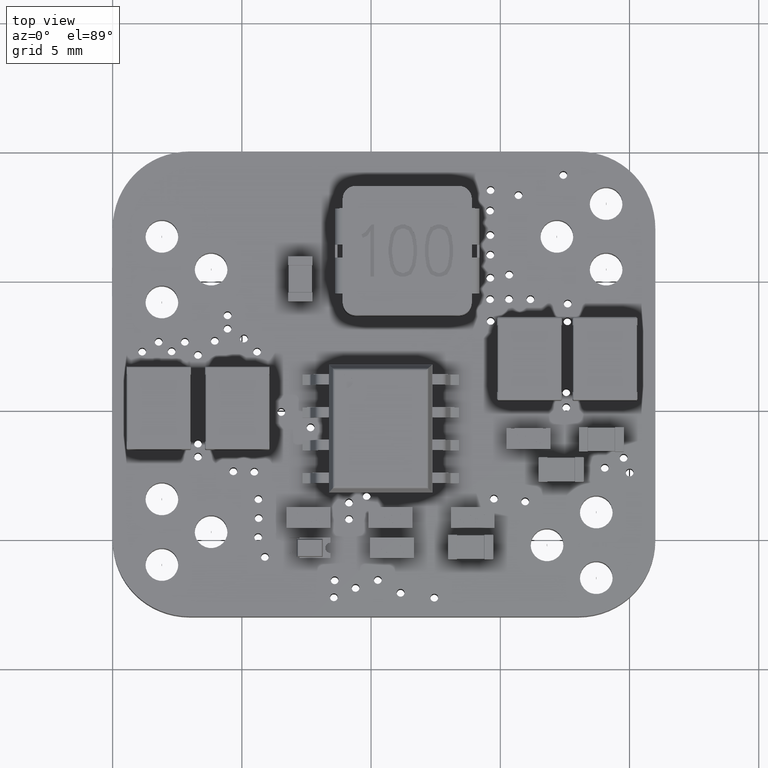
[diagram: clean part render]
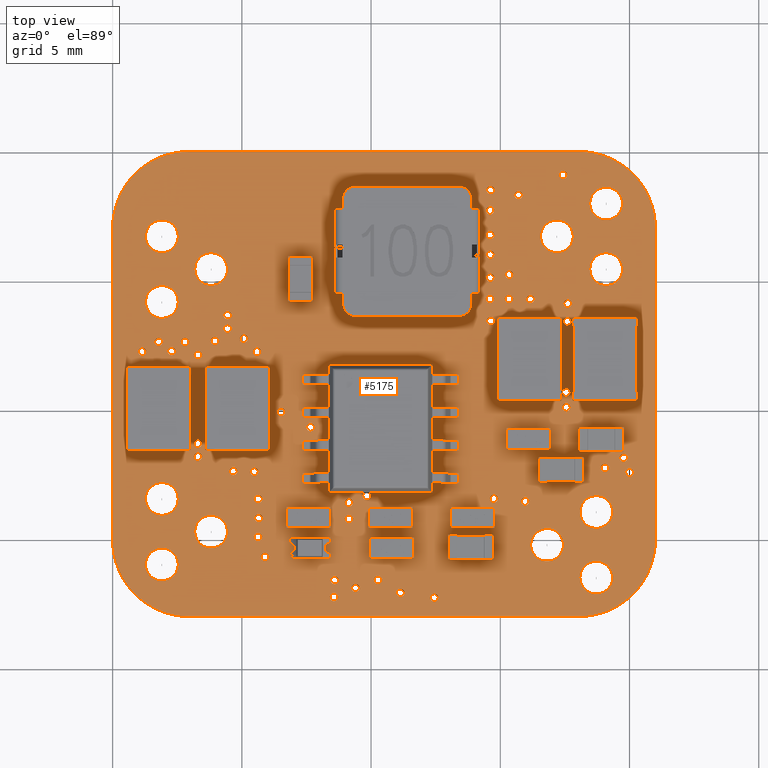
[diagram: same view with one face highlighted and labeled with its STEP entity id]
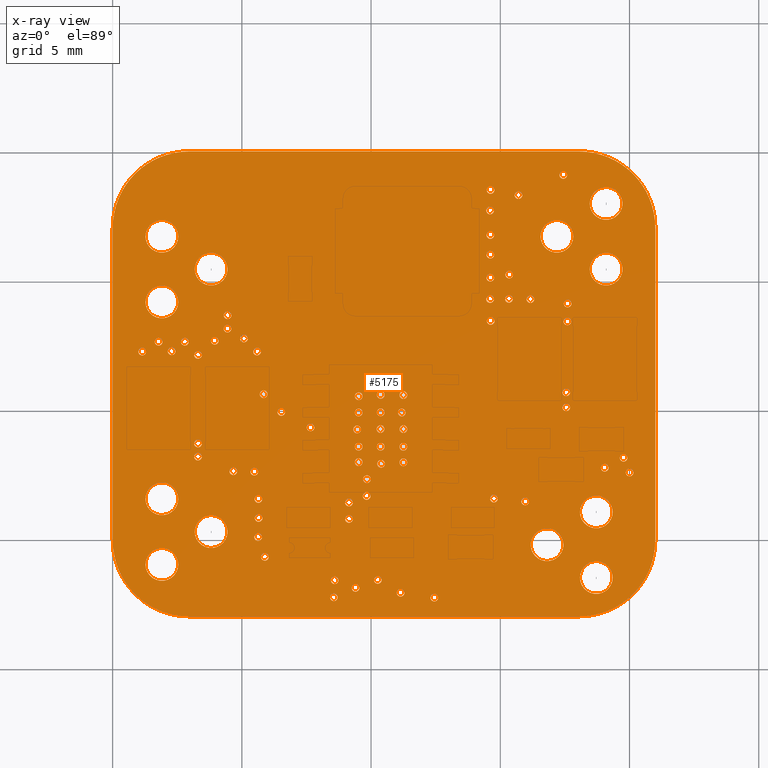
[diagram: x-ray of the same camera — body ghosted, the highlighted face saturated]
A machine part, top view. The second image highlights one B-rep face of the part: STEP entity #5175.
The next image is the same camera in x-ray: the body ghosted, the highlighted face saturated — about 0% of this face is hidden behind the body in this view.
In plain terms, the highlighted planar face has unit normal (0, 0, 1).
Its self-contained STEP definition (entity closure, byte-faithful):
#154 = VERTEX_POINT('',#155);
#155 = CARTESIAN_POINT('',(18.,-5.,1.18016));
#161 = EDGE_CURVE('',#154,#162,#164,.T.);
#162 = VERTEX_POINT('',#163);
#163 = CARTESIAN_POINT('',(3.,-5.,1.18016));
#164 = LINE('',#165,#166);
#165 = CARTESIAN_POINT('',(18.,-5.,1.18016));
#166 = VECTOR('',#167,1.);
#167 = DIRECTION('',(-1.,0.,0.));
#194 = VERTEX_POINT('',#195);
#195 = CARTESIAN_POINT('',(18.31178,-5.01515,1.18016));
#201 = EDGE_CURVE('',#194,#154,#202,.T.);
#202 = LINE('',#203,#204);
#203 = CARTESIAN_POINT('',(18.31178,-5.01515,1.18016));
#204 = VECTOR('',#205,1.);
#205 = DIRECTION('',(-0.998821497493,4.853469012452E-02,0.));
#223 = EDGE_CURVE('',#162,#224,#226,.T.);
#224 = VERTEX_POINT('',#225);
#225 = CARTESIAN_POINT('',(2.68822,-5.01515,1.18016));
#226 = LINE('',#227,#228);
#227 = CARTESIAN_POINT('',(3.,-5.,1.18016));
#228 = VECTOR('',#229,1.);
#229 = DIRECTION('',(-0.998821497493,-4.853469012452E-02,0.));
#256 = VERTEX_POINT('',#257);
#257 = CARTESIAN_POINT('',(18.6134,-5.05969,1.18016));
#263 = EDGE_CURVE('',#256,#194,#264,.T.);
#264 = LINE('',#265,#266);
#265 = CARTESIAN_POINT('',(18.6134,-5.05969,1.18016));
#266 = VECTOR('',#267,1.);
#267 = DIRECTION('',(-0.98927203272,0.146085061791,0.));
#285 = EDGE_CURVE('',#224,#286,#288,.T.);
#286 = VERTEX_POINT('',#287);
#287 = CARTESIAN_POINT('',(2.3866,-5.05969,1.18016));
#288 = LINE('',#289,#290);
#289 = CARTESIAN_POINT('',(2.68822,-5.01515,1.18016));
#290 = VECTOR('',#291,1.);
#291 = DIRECTION('',(-0.98927203272,-0.146085061791,0.));
#318 = VERTEX_POINT('',#319);
#319 = CARTESIAN_POINT('',(18.90349,-5.13225,1.18016));
#325 = EDGE_CURVE('',#318,#256,#326,.T.);
#326 = LINE('',#327,#328);
#327 = CARTESIAN_POINT('',(18.90349,-5.13225,1.18016));
#328 = VECTOR('',#329,1.);
#329 = DIRECTION('',(-0.970112985501,0.242653653101,0.));
#347 = EDGE_CURVE('',#286,#348,#350,.T.);
#348 = VERTEX_POINT('',#349);
#349 = CARTESIAN_POINT('',(2.09651,-5.13225,1.18016));
#350 = LINE('',#351,#352);
#351 = CARTESIAN_POINT('',(2.3866,-5.05969,1.18016));
#352 = VECTOR('',#353,1.);
#353 = DIRECTION('',(-0.970112985501,-0.242653653101,0.));
#380 = VERTEX_POINT('',#381);
#381 = CARTESIAN_POINT('',(19.18066,-5.23145,1.18016));
#387 = EDGE_CURVE('',#380,#318,#388,.T.);
#388 = LINE('',#389,#390);
#389 = CARTESIAN_POINT('',(19.18066,-5.23145,1.18016));
#390 = VECTOR('',#391,1.);
#391 = DIRECTION('',(-0.941514982379,0.336971123325,0.));
#409 = EDGE_CURVE('',#348,#410,#412,.T.);
#410 = VERTEX_POINT('',#411);
#411 = CARTESIAN_POINT('',(1.81934,-5.23145,1.18016));
#412 = LINE('',#413,#414);
#413 = CARTESIAN_POINT('',(2.09651,-5.13225,1.18016));
#414 = VECTOR('',#415,1.);
#415 = DIRECTION('',(-0.941514982379,-0.336971123325,0.));
#442 = VERTEX_POINT('',#443);
#443 = CARTESIAN_POINT('',(19.44356,-5.35591,1.18016));
#449 = EDGE_CURVE('',#442,#380,#450,.T.);
#450 = LINE('',#451,#452);
#451 = CARTESIAN_POINT('',(19.44356,-5.35591,1.18016));
#452 = VECTOR('',#453,1.);
#453 = DIRECTION('',(-0.903833020889,0.427885347203,0.));
#471 = EDGE_CURVE('',#410,#472,#474,.T.);
#472 = VERTEX_POINT('',#473);
#473 = CARTESIAN_POINT('',(1.55645,-5.35591,1.18016));
#474 = LINE('',#475,#476);
#475 = CARTESIAN_POINT('',(1.81934,-5.23145,1.18016));
#476 = VECTOR('',#477,1.);
#477 = DIRECTION('',(-0.903826726223,-0.427898643332,0.));
#504 = VERTEX_POINT('',#505);
#505 = CARTESIAN_POINT('',(19.69079,-5.50427,1.18016));
#511 = EDGE_CURVE('',#504,#442,#512,.T.);
#512 = LINE('',#513,#514);
#513 = CARTESIAN_POINT('',(19.69079,-5.50427,1.18016));
#514 = VECTOR('',#515,1.);
#515 = DIRECTION('',(-0.857459261301,0.51455185862,0.));
#533 = EDGE_CURVE('',#472,#534,#536,.T.);
#534 = VERTEX_POINT('',#535);
#535 = CARTESIAN_POINT('',(1.30921,-5.50427,1.18016));
#536 = LINE('',#537,#538);
#537 = CARTESIAN_POINT('',(1.55645,-5.35591,1.18016));
#538 = VECTOR('',#539,1.);
#539 = DIRECTION('',(-0.857468443596,-0.514536556754,0.));
#566 = VERTEX_POINT('',#567);
#567 = CARTESIAN_POINT('',(19.921,-5.67516,1.18016));
#573 = EDGE_CURVE('',#566,#504,#574,.T.);
#574 = LINE('',#575,#576);
#575 = CARTESIAN_POINT('',(19.921,-5.67516,1.18016));
#576 = VECTOR('',#577,1.);
#577 = DIRECTION('',(-0.802949404684,0.59604719068,0.));
#595 = EDGE_CURVE('',#534,#596,#598,.T.);
#596 = VERTEX_POINT('',#597);
#597 = CARTESIAN_POINT('',(1.079,-5.67516,1.18016));
#598 = LINE('',#599,#600);
#599 = CARTESIAN_POINT('',(1.30921,-5.50427,1.18016));
#600 = VECTOR('',#601,1.);
#601 = DIRECTION('',(-0.802949404684,-0.59604719068,0.));
#628 = VERTEX_POINT('',#629);
#629 = CARTESIAN_POINT('',(20.13281,-5.86719,1.18016));
#635 = EDGE_CURVE('',#628,#566,#636,.T.);
#636 = LINE('',#637,#638);
#637 = CARTESIAN_POINT('',(20.13281,-5.86719,1.18016));
#638 = VECTOR('',#639,1.);
#639 = DIRECTION('',(-0.740852597809,0.671667647218,0.));
#657 = EDGE_CURVE('',#596,#658,#660,.T.);
#658 = VERTEX_POINT('',#659);
#659 = CARTESIAN_POINT('',(0.86719,-5.86719,1.18016));
#660 = LINE('',#661,#662);
#661 = CARTESIAN_POINT('',(1.079,-5.67516,1.18016));
#662 = VECTOR('',#663,1.);
#663 = DIRECTION('',(-0.740852597809,-0.671667647218,0.));
#690 = VERTEX_POINT('',#691);
#691 = CARTESIAN_POINT('',(20.32484,-6.07899,1.18016));
#697 = EDGE_CURVE('',#690,#628,#698,.T.);
#698 = LINE('',#699,#700);
#699 = CARTESIAN_POINT('',(20.32484,-6.07899,1.18016));
#700 = VECTOR('',#701,1.);
#701 = DIRECTION('',(-0.671685052386,0.74083681766,0.));
#719 = EDGE_CURVE('',#658,#720,#722,.T.);
#720 = VERTEX_POINT('',#721);
#721 = CARTESIAN_POINT('',(0.67516,-6.07899,1.18016));
#722 = LINE('',#723,#724);
#723 = CARTESIAN_POINT('',(0.86719,-5.86719,1.18016));
#724 = VECTOR('',#725,1.);
#725 = DIRECTION('',(-0.671685052386,-0.74083681766,0.));
#752 = VERTEX_POINT('',#753);
#753 = CARTESIAN_POINT('',(20.49573,-6.3092,1.18016));
#759 = EDGE_CURVE('',#752,#690,#760,.T.);
#760 = LINE('',#761,#762);
#761 = CARTESIAN_POINT('',(20.49573,-6.3092,1.18016));
#762 = VECTOR('',#763,1.);
#763 = DIRECTION('',(-0.59604719068,0.802949404684,0.));
#781 = EDGE_CURVE('',#720,#782,#784,.T.);
#782 = VERTEX_POINT('',#783);
#783 = CARTESIAN_POINT('',(0.50427,-6.3092,1.18016));
#784 = LINE('',#785,#786);
#785 = CARTESIAN_POINT('',(0.67516,-6.07899,1.18016));
#786 = VECTOR('',#787,1.);
#787 = DIRECTION('',(-0.59604719068,-0.802949404684,0.));
#814 = VERTEX_POINT('',#815);
#815 = CARTESIAN_POINT('',(20.64409,-6.55644,1.18016));
#821 = EDGE_CURVE('',#814,#752,#822,.T.);
#822 = LINE('',#823,#824);
#823 = CARTESIAN_POINT('',(20.64409,-6.55644,1.18016));
#824 = VECTOR('',#825,1.);
#825 = DIRECTION('',(-0.514536556754,0.857468443596,0.));
#843 = EDGE_CURVE('',#782,#844,#846,.T.);
#844 = VERTEX_POINT('',#845);
#845 = CARTESIAN_POINT('',(0.35591,-6.55644,1.18016));
#846 = LINE('',#847,#848);
#847 = CARTESIAN_POINT('',(0.50427,-6.3092,1.18016));
#848 = VECTOR('',#849,1.);
#849 = DIRECTION('',(-0.514536556754,-0.857468443596,0.));
#876 = VERTEX_POINT('',#877);
#877 = CARTESIAN_POINT('',(20.76855,-6.81934,1.18016));
#883 = EDGE_CURVE('',#876,#814,#884,.T.);
#884 = LINE('',#885,#886);
#885 = CARTESIAN_POINT('',(20.76855,-6.81934,1.18016));
#886 = VECTOR('',#887,1.);
#887 = DIRECTION('',(-0.427885347203,0.903833020889,0.));
#905 = EDGE_CURVE('',#844,#906,#908,.T.);
#906 = VERTEX_POINT('',#907);
#907 = CARTESIAN_POINT('',(0.23145,-6.81934,1.18016));
#908 = LINE('',#909,#910);
#909 = CARTESIAN_POINT('',(0.35591,-6.55644,1.18016));
#910 = VECTOR('',#911,1.);
#911 = DIRECTION('',(-0.427885347203,-0.903833020889,0.));
#938 = VERTEX_POINT('',#939);
#939 = CARTESIAN_POINT('',(20.86775,-7.09651,1.18016));
#945 = EDGE_CURVE('',#938,#876,#946,.T.);
#946 = LINE('',#947,#948);
#947 = CARTESIAN_POINT('',(20.86775,-7.09651,1.18016));
#948 = VECTOR('',#949,1.);
#949 = DIRECTION('',(-0.336971123325,0.941514982379,0.));
#967 = EDGE_CURVE('',#906,#968,#970,.T.);
#968 = VERTEX_POINT('',#969);
#969 = CARTESIAN_POINT('',(0.13225,-7.09651,1.18016));
#970 = LINE('',#971,#972);
#971 = CARTESIAN_POINT('',(0.23145,-6.81934,1.18016));
#972 = VECTOR('',#973,1.);
#973 = DIRECTION('',(-0.336971123325,-0.941514982379,0.));
#1000 = VERTEX_POINT('',#1001);
#1001 = CARTESIAN_POINT('',(20.94031,-7.3866,1.18016));
#1007 = EDGE_CURVE('',#1000,#938,#1008,.T.);
#1008 = LINE('',#1009,#1010);
#1009 = CARTESIAN_POINT('',(20.94031,-7.3866,1.18016));
#1010 = VECTOR('',#1011,1.);
#1011 = DIRECTION('',(-0.242653653101,0.970112985501,0.));
#1029 = EDGE_CURVE('',#968,#1030,#1032,.T.);
#1030 = VERTEX_POINT('',#1031);
#1031 = CARTESIAN_POINT('',(5.969E-02,-7.3866,1.18016));
#1032 = LINE('',#1033,#1034);
#1033 = CARTESIAN_POINT('',(0.13225,-7.09651,1.18016));
#1034 = VECTOR('',#1035,1.);
#1035 = DIRECTION('',(-0.242653653101,-0.970112985501,0.));
#1062 = VERTEX_POINT('',#1063);
#1063 = CARTESIAN_POINT('',(20.98485,-7.68822,1.18016));
#1069 = EDGE_CURVE('',#1062,#1000,#1070,.T.);
#1070 = LINE('',#1071,#1072);
#1071 = CARTESIAN_POINT('',(20.98485,-7.68822,1.18016));
#1072 = VECTOR('',#1073,1.);
#1073 = DIRECTION('',(-0.146085061791,0.98927203272,0.));
#1091 = EDGE_CURVE('',#1030,#1092,#1094,.T.);
#1092 = VERTEX_POINT('',#1093);
#1093 = CARTESIAN_POINT('',(1.515E-02,-7.68822,1.18016));
#1094 = LINE('',#1095,#1096);
#1095 = CARTESIAN_POINT('',(5.969E-02,-7.3866,1.18016));
#1096 = VECTOR('',#1097,1.);
#1097 = DIRECTION('',(-0.146085061791,-0.98927203272,0.));
#1124 = VERTEX_POINT('',#1125);
#1125 = CARTESIAN_POINT('',(21.,-8.,1.18016));
#1131 = EDGE_CURVE('',#1124,#1062,#1132,.T.);
#1132 = LINE('',#1133,#1134);
#1133 = CARTESIAN_POINT('',(21.,-8.,1.18016));
#1134 = VECTOR('',#1135,1.);
#1135 = DIRECTION('',(-4.853469012451E-02,0.998821497493,0.));
#1153 = EDGE_CURVE('',#1092,#1154,#1156,.T.);
#1154 = VERTEX_POINT('',#1155);
#1155 = CARTESIAN_POINT('',(0.,-8.,1.18016));
#1156 = LINE('',#1157,#1158);
#1157 = CARTESIAN_POINT('',(1.515E-02,-7.68822,1.18016));
#1158 = VECTOR('',#1159,1.);
#1159 = DIRECTION('',(-4.853469012452E-02,-0.998821497493,0.));
#1186 = VERTEX_POINT('',#1187);
#1187 = CARTESIAN_POINT('',(21.,-20.,1.18016));
#1193 = EDGE_CURVE('',#1186,#1124,#1194,.T.);
#1194 = LINE('',#1195,#1196);
#1195 = CARTESIAN_POINT('',(21.,-20.,1.18016));
#1196 = VECTOR('',#1197,1.);
#1197 = DIRECTION('',(0.,1.,0.));
#1215 = EDGE_CURVE('',#1154,#1216,#1218,.T.);
#1216 = VERTEX_POINT('',#1217);
#1217 = CARTESIAN_POINT('',(0.,-20.,1.18016));
#1218 = LINE('',#1219,#1220);
#1219 = CARTESIAN_POINT('',(0.,-8.,1.18016));
#1220 = VECTOR('',#1221,1.);
#1221 = DIRECTION('',(0.,-1.,0.));
#1248 = VERTEX_POINT('',#1249);
#1249 = CARTESIAN_POINT('',(20.98485,-20.31178,1.18016));
#1255 = EDGE_CURVE('',#1248,#1186,#1256,.T.);
#1256 = LINE('',#1257,#1258);
#1257 = CARTESIAN_POINT('',(20.98485,-20.31178,1.18016));
#1258 = VECTOR('',#1259,1.);
#1259 = DIRECTION('',(4.853469012451E-02,0.998821497493,0.));
#1277 = EDGE_CURVE('',#1216,#1278,#1280,.T.);
#1278 = VERTEX_POINT('',#1279);
#1279 = CARTESIAN_POINT('',(1.515E-02,-20.31178,1.18016));
#1280 = LINE('',#1281,#1282);
#1281 = CARTESIAN_POINT('',(0.,-20.,1.18016));
#1282 = VECTOR('',#1283,1.);
#1283 = DIRECTION('',(4.853469012452E-02,-0.998821497493,0.));
#1310 = VERTEX_POINT('',#1311);
#1311 = CARTESIAN_POINT('',(20.94031,-20.6134,1.18016));
#1317 = EDGE_CURVE('',#1310,#1248,#1318,.T.);
#1318 = LINE('',#1319,#1320);
#1319 = CARTESIAN_POINT('',(20.94031,-20.6134,1.18016));
#1320 = VECTOR('',#1321,1.);
#1321 = DIRECTION('',(0.146085061791,0.98927203272,0.));
#1339 = EDGE_CURVE('',#1278,#1340,#1342,.T.);
#1340 = VERTEX_POINT('',#1341);
#1341 = CARTESIAN_POINT('',(5.969E-02,-20.6134,1.18016));
#1342 = LINE('',#1343,#1344);
#1343 = CARTESIAN_POINT('',(1.515E-02,-20.31178,1.18016));
#1344 = VECTOR('',#1345,1.);
#1345 = DIRECTION('',(0.146085061791,-0.98927203272,0.));
#1372 = VERTEX_POINT('',#1373);
#1373 = CARTESIAN_POINT('',(20.86775,-20.90349,1.18016));
#1379 = EDGE_CURVE('',#1372,#1310,#1380,.T.);
#1380 = LINE('',#1381,#1382);
#1381 = CARTESIAN_POINT('',(20.86775,-20.90349,1.18016));
#1382 = VECTOR('',#1383,1.);
#1383 = DIRECTION('',(0.242653653101,0.970112985501,0.));
#1401 = EDGE_CURVE('',#1340,#1402,#1404,.T.);
#1402 = VERTEX_POINT('',#1403);
#1403 = CARTESIAN_POINT('',(0.13225,-20.90349,1.18016));
#1404 = LINE('',#1405,#1406);
#1405 = CARTESIAN_POINT('',(5.969E-02,-20.6134,1.18016));
#1406 = VECTOR('',#1407,1.);
#1407 = DIRECTION('',(0.242653653101,-0.970112985501,0.));
#1434 = VERTEX_POINT('',#1435);
#1435 = CARTESIAN_POINT('',(20.76855,-21.18066,1.18016));
#1441 = EDGE_CURVE('',#1434,#1372,#1442,.T.);
#1442 = LINE('',#1443,#1444);
#1443 = CARTESIAN_POINT('',(20.76855,-21.18066,1.18016));
#1444 = VECTOR('',#1445,1.);
#1445 = DIRECTION('',(0.336971123325,0.941514982379,0.));
#1463 = EDGE_CURVE('',#1402,#1464,#1466,.T.);
#1464 = VERTEX_POINT('',#1465);
#1465 = CARTESIAN_POINT('',(0.23145,-21.18066,1.18016));
#1466 = LINE('',#1467,#1468);
#1467 = CARTESIAN_POINT('',(0.13225,-20.90349,1.18016));
#1468 = VECTOR('',#1469,1.);
#1469 = DIRECTION('',(0.336971123325,-0.941514982379,0.));
#1496 = VERTEX_POINT('',#1497);
#1497 = CARTESIAN_POINT('',(20.64409,-21.44356,1.18016));
#1503 = EDGE_CURVE('',#1496,#1434,#1504,.T.);
#1504 = LINE('',#1505,#1506);
#1505 = CARTESIAN_POINT('',(20.64409,-21.44356,1.18016));
#1506 = VECTOR('',#1507,1.);
#1507 = DIRECTION('',(0.427885347203,0.903833020889,0.));
#1525 = EDGE_CURVE('',#1464,#1526,#1528,.T.);
#1526 = VERTEX_POINT('',#1527);
#1527 = CARTESIAN_POINT('',(0.35591,-21.44356,1.18016));
#1528 = LINE('',#1529,#1530);
#1529 = CARTESIAN_POINT('',(0.23145,-21.18066,1.18016));
#1530 = VECTOR('',#1531,1.);
#1531 = DIRECTION('',(0.427885347203,-0.903833020889,0.));
#1558 = VERTEX_POINT('',#1559);
#1559 = CARTESIAN_POINT('',(20.49573,-21.6908,1.18016));
#1565 = EDGE_CURVE('',#1558,#1496,#1566,.T.);
#1566 = LINE('',#1567,#1568);
#1567 = CARTESIAN_POINT('',(20.49573,-21.6908,1.18016));
#1568 = VECTOR('',#1569,1.);
#1569 = DIRECTION('',(0.514536556754,0.857468443596,0.));
#1587 = EDGE_CURVE('',#1526,#1588,#1590,.T.);
#1588 = VERTEX_POINT('',#1589);
#1589 = CARTESIAN_POINT('',(0.50427,-21.6908,1.18016));
#1590 = LINE('',#1591,#1592);
#1591 = CARTESIAN_POINT('',(0.35591,-21.44356,1.18016));
#1592 = VECTOR('',#1593,1.);
#1593 = DIRECTION('',(0.514536556754,-0.857468443596,0.));
#1620 = VERTEX_POINT('',#1621);
#1621 = CARTESIAN_POINT('',(20.32484,-21.92101,1.18016));
#1627 = EDGE_CURVE('',#1620,#1558,#1628,.T.);
#1628 = LINE('',#1629,#1630);
#1629 = CARTESIAN_POINT('',(20.32484,-21.92101,1.18016));
#1630 = VECTOR('',#1631,1.);
#1631 = DIRECTION('',(0.59604719068,0.802949404684,0.));
#1649 = EDGE_CURVE('',#1588,#1650,#1652,.T.);
#1650 = VERTEX_POINT('',#1651);
#1651 = CARTESIAN_POINT('',(0.67516,-21.92101,1.18016));
#1652 = LINE('',#1653,#1654);
#1653 = CARTESIAN_POINT('',(0.50427,-21.6908,1.18016));
#1654 = VECTOR('',#1655,1.);
#1655 = DIRECTION('',(0.59604719068,-0.802949404684,0.));
#1682 = VERTEX_POINT('',#1683);
#1683 = CARTESIAN_POINT('',(20.13281,-22.13281,1.18016));
#1689 = EDGE_CURVE('',#1682,#1620,#1690,.T.);
#1690 = LINE('',#1691,#1692);
#1691 = CARTESIAN_POINT('',(20.13281,-22.13281,1.18016));
#1692 = VECTOR('',#1693,1.);
#1693 = DIRECTION('',(0.671685052386,0.74083681766,0.));
#1711 = EDGE_CURVE('',#1650,#1712,#1714,.T.);
#1712 = VERTEX_POINT('',#1713);
#1713 = CARTESIAN_POINT('',(0.86719,-22.13281,1.18016));
#1714 = LINE('',#1715,#1716);
#1715 = CARTESIAN_POINT('',(0.67516,-21.92101,1.18016));
#1716 = VECTOR('',#1717,1.);
#1717 = DIRECTION('',(0.671685052386,-0.74083681766,0.));
#1744 = VERTEX_POINT('',#1745);
#1745 = CARTESIAN_POINT('',(19.921,-22.32484,1.18016));
#1751 = EDGE_CURVE('',#1744,#1682,#1752,.T.);
#1752 = LINE('',#1753,#1754);
#1753 = CARTESIAN_POINT('',(19.921,-22.32484,1.18016));
#1754 = VECTOR('',#1755,1.);
#1755 = DIRECTION('',(0.740852597809,0.671667647218,0.));
#1773 = EDGE_CURVE('',#1712,#1774,#1776,.T.);
#1774 = VERTEX_POINT('',#1775);
#1775 = CARTESIAN_POINT('',(1.079,-22.32484,1.18016));
#1776 = LINE('',#1777,#1778);
#1777 = CARTESIAN_POINT('',(0.86719,-22.13281,1.18016));
#1778 = VECTOR('',#1779,1.);
#1779 = DIRECTION('',(0.740852597809,-0.671667647218,0.));
#1806 = VERTEX_POINT('',#1807);
#1807 = CARTESIAN_POINT('',(19.69079,-22.49573,1.18016));
#1813 = EDGE_CURVE('',#1806,#1744,#1814,.T.);
#1814 = LINE('',#1815,#1816);
#1815 = CARTESIAN_POINT('',(19.69079,-22.49573,1.18016));
#1816 = VECTOR('',#1817,1.);
#1817 = DIRECTION('',(0.802949404684,0.59604719068,0.));
#1835 = EDGE_CURVE('',#1774,#1836,#1838,.T.);
#1836 = VERTEX_POINT('',#1837);
#1837 = CARTESIAN_POINT('',(1.30921,-22.49573,1.18016));
#1838 = LINE('',#1839,#1840);
#1839 = CARTESIAN_POINT('',(1.079,-22.32484,1.18016));
#1840 = VECTOR('',#1841,1.);
#1841 = DIRECTION('',(0.802949404684,-0.59604719068,0.));
#1868 = VERTEX_POINT('',#1869);
#1869 = CARTESIAN_POINT('',(19.44356,-22.64409,1.18016));
#1875 = EDGE_CURVE('',#1868,#1806,#1876,.T.);
#1876 = LINE('',#1877,#1878);
#1877 = CARTESIAN_POINT('',(19.44356,-22.64409,1.18016));
#1878 = VECTOR('',#1879,1.);
#1879 = DIRECTION('',(0.857459261301,0.51455185862,0.));
#1897 = EDGE_CURVE('',#1836,#1898,#1900,.T.);
#1898 = VERTEX_POINT('',#1899);
#1899 = CARTESIAN_POINT('',(1.55645,-22.64409,1.18016));
#1900 = LINE('',#1901,#1902);
#1901 = CARTESIAN_POINT('',(1.30921,-22.49573,1.18016));
#1902 = VECTOR('',#1903,1.);
#1903 = DIRECTION('',(0.857468443596,-0.514536556754,0.));
#1930 = VERTEX_POINT('',#1931);
#1931 = CARTESIAN_POINT('',(19.18066,-22.76855,1.18016));
#1937 = EDGE_CURVE('',#1930,#1868,#1938,.T.);
#1938 = LINE('',#1939,#1940);
#1939 = CARTESIAN_POINT('',(19.18066,-22.76855,1.18016));
#1940 = VECTOR('',#1941,1.);
#1941 = DIRECTION('',(0.903833020889,0.427885347203,0.));
#1959 = EDGE_CURVE('',#1898,#1960,#1962,.T.);
#1960 = VERTEX_POINT('',#1961);
#1961 = CARTESIAN_POINT('',(1.81934,-22.76855,1.18016));
#1962 = LINE('',#1963,#1964);
#1963 = CARTESIAN_POINT('',(1.55645,-22.64409,1.18016));
#1964 = VECTOR('',#1965,1.);
#1965 = DIRECTION('',(0.903826726223,-0.427898643332,0.));
#1992 = VERTEX_POINT('',#1993);
#1993 = CARTESIAN_POINT('',(18.90349,-22.86775,1.18016));
#1999 = EDGE_CURVE('',#1992,#1930,#2000,.T.);
#2000 = LINE('',#2001,#2002);
#2001 = CARTESIAN_POINT('',(18.90349,-22.86775,1.18016));
#2002 = VECTOR('',#2003,1.);
#2003 = DIRECTION('',(0.941514982379,0.336971123325,0.));
#2021 = EDGE_CURVE('',#1960,#2022,#2024,.T.);
#2022 = VERTEX_POINT('',#2023);
#2023 = CARTESIAN_POINT('',(2.09651,-22.86775,1.18016));
#2024 = LINE('',#2025,#2026);
#2025 = CARTESIAN_POINT('',(1.81934,-22.76855,1.18016));
#2026 = VECTOR('',#2027,1.);
#2027 = DIRECTION('',(0.941514982379,-0.336971123325,0.));
#2054 = VERTEX_POINT('',#2055);
#2055 = CARTESIAN_POINT('',(18.6134,-22.94031,1.18016));
#2061 = EDGE_CURVE('',#2054,#1992,#2062,.T.);
#2062 = LINE('',#2063,#2064);
#2063 = CARTESIAN_POINT('',(18.6134,-22.94031,1.18016));
#2064 = VECTOR('',#2065,1.);
#2065 = DIRECTION('',(0.970112985501,0.242653653101,0.));
#2083 = EDGE_CURVE('',#2022,#2084,#2086,.T.);
#2084 = VERTEX_POINT('',#2085);
#2085 = CARTESIAN_POINT('',(2.3866,-22.94031,1.18016));
#2086 = LINE('',#2087,#2088);
#2087 = CARTESIAN_POINT('',(2.09651,-22.86775,1.18016));
#2088 = VECTOR('',#2089,1.);
#2089 = DIRECTION('',(0.970112985501,-0.242653653101,0.));
#2116 = VERTEX_POINT('',#2117);
#2117 = CARTESIAN_POINT('',(18.31178,-22.98485,1.18016));
#2123 = EDGE_CURVE('',#2116,#2054,#2124,.T.);
#2124 = LINE('',#2125,#2126);
#2125 = CARTESIAN_POINT('',(18.31178,-22.98485,1.18016));
#2126 = VECTOR('',#2127,1.);
#2127 = DIRECTION('',(0.98927203272,0.146085061791,0.));
#2145 = EDGE_CURVE('',#2084,#2146,#2148,.T.);
#2146 = VERTEX_POINT('',#2147);
#2147 = CARTESIAN_POINT('',(2.68822,-22.98485,1.18016));
#2148 = LINE('',#2149,#2150);
#2149 = CARTESIAN_POINT('',(2.3866,-22.94031,1.18016));
#2150 = VECTOR('',#2151,1.);
#2151 = DIRECTION('',(0.98927203272,-0.146085061791,0.));
#2178 = VERTEX_POINT('',#2179);
#2179 = CARTESIAN_POINT('',(18.,-23.,1.18016));
#2185 = EDGE_CURVE('',#2178,#2116,#2186,.T.);
#2186 = LINE('',#2187,#2188);
#2187 = CARTESIAN_POINT('',(18.,-23.,1.18016));
#2188 = VECTOR('',#2189,1.);
#2189 = DIRECTION('',(0.998821497493,4.853469012452E-02,0.));
#2207 = EDGE_CURVE('',#2146,#2208,#2210,.T.);
#2208 = VERTEX_POINT('',#2209);
#2209 = CARTESIAN_POINT('',(3.,-23.,1.18016));
#2210 = LINE('',#2211,#2212);
#2211 = CARTESIAN_POINT('',(2.68822,-22.98485,1.18016));
#2212 = VECTOR('',#2213,1.);
#2213 = DIRECTION('',(0.998821497493,-4.853469012452E-02,0.));
#2238 = EDGE_CURVE('',#2208,#2178,#2239,.T.);
#2239 = LINE('',#2240,#2241);
#2240 = CARTESIAN_POINT('',(3.,-23.,1.18016));
#2241 = VECTOR('',#2242,1.);
#2242 = DIRECTION('',(1.,0.,0.));
#2262 = VERTEX_POINT('',#2263);
#2263 = CARTESIAN_POINT('',(2.54,-20.985,1.18016));
#2269 = EDGE_CURVE('',#2262,#2262,#2270,.T.);
#2270 = CIRCLE('',#2271,0.635);
#2271 = AXIS2_PLACEMENT_3D('',#2272,#2273,#2274);
#2272 = CARTESIAN_POINT('',(1.905,-20.985,1.18016));
#2273 = DIRECTION('',(0.,0.,1.));
#2274 = DIRECTION('',(1.,0.,-0.));
#2295 = VERTEX_POINT('',#2296);
#2296 = CARTESIAN_POINT('',(2.54,-18.445,1.18016));
#2302 = EDGE_CURVE('',#2295,#2295,#2303,.T.);
#2303 = CIRCLE('',#2304,0.635);
#2304 = AXIS2_PLACEMENT_3D('',#2305,#2306,#2307);
#2305 = CARTESIAN_POINT('',(1.905,-18.445,1.18016));
#2306 = DIRECTION('',(0.,0.,1.));
#2307 = DIRECTION('',(1.,0.,-0.));
#2328 = VERTEX_POINT('',#2329);
#2329 = CARTESIAN_POINT('',(4.445,-19.715,1.18016));
#2335 = EDGE_CURVE('',#2328,#2328,#2336,.T.);
#2336 = CIRCLE('',#2337,0.635);
#2337 = AXIS2_PLACEMENT_3D('',#2338,#2339,#2340);
#2338 = CARTESIAN_POINT('',(3.81,-19.715,1.18016));
#2339 = DIRECTION('',(0.,0.,1.));
#2340 = DIRECTION('',(1.,0.,-0.));
#2361 = VERTEX_POINT('',#2362);
#2362 = CARTESIAN_POINT('',(5.77831,-19.9235,1.18016));
#2368 = EDGE_CURVE('',#2361,#2361,#2369,.T.);
#2369 = CIRCLE('',#2370,0.15);
#2370 = AXIS2_PLACEMENT_3D('',#2371,#2372,#2373);
#2371 = CARTESIAN_POINT('',(5.62831,-19.9235,1.18016));
#2372 = DIRECTION('',(0.,0.,1.));
#2373 = DIRECTION('',(1.,0.,-0.));
#2394 = VERTEX_POINT('',#2395);
#2395 = CARTESIAN_POINT('',(5.79847,-19.18771,1.18016));
#2401 = EDGE_CURVE('',#2394,#2394,#2402,.T.);
#2402 = CIRCLE('',#2403,0.15);
#2403 = AXIS2_PLACEMENT_3D('',#2404,#2405,#2406);
#2404 = CARTESIAN_POINT('',(5.64847,-19.18771,1.18016));
#2405 = DIRECTION('',(0.,0.,1.));
#2406 = DIRECTION('',(1.,0.,-0.));
#2427 = VERTEX_POINT('',#2428);
#2428 = CARTESIAN_POINT('',(5.78839,-18.45193,1.18016));
#2434 = EDGE_CURVE('',#2427,#2427,#2435,.T.);
#2435 = CIRCLE('',#2436,0.15);
#2436 = AXIS2_PLACEMENT_3D('',#2437,#2438,#2439);
#2437 = CARTESIAN_POINT('',(5.63839,-18.45193,1.18016));
#2438 = DIRECTION('',(0.,0.,1.));
#2439 = DIRECTION('',(1.,0.,-0.));
#2460 = VERTEX_POINT('',#2461);
#2461 = CARTESIAN_POINT('',(6.04038,-20.68953,1.18016));
#2467 = EDGE_CURVE('',#2460,#2460,#2468,.T.);
#2468 = CIRCLE('',#2469,0.15);
#2469 = AXIS2_PLACEMENT_3D('',#2470,#2471,#2472);
#2470 = CARTESIAN_POINT('',(5.89038,-20.68953,1.18016));
#2471 = DIRECTION('',(0.,0.,1.));
#2472 = DIRECTION('',(1.,0.,-0.));
#2493 = VERTEX_POINT('',#2494);
#2494 = CARTESIAN_POINT('',(8.7107,-22.25293,1.18016));
#2500 = EDGE_CURVE('',#2493,#2493,#2501,.T.);
#2501 = CIRCLE('',#2502,0.15);
#2502 = AXIS2_PLACEMENT_3D('',#2503,#2504,#2505);
#2503 = CARTESIAN_POINT('',(8.5607,-22.25293,1.18016));
#2504 = DIRECTION('',(0.,0.,1.));
#2505 = DIRECTION('',(1.,0.,-0.));
#2526 = VERTEX_POINT('',#2527);
#2527 = CARTESIAN_POINT('',(8.74104,-21.59542,1.18016));
#2533 = EDGE_CURVE('',#2526,#2526,#2534,.T.);
#2534 = CIRCLE('',#2535,0.15);
#2535 = AXIS2_PLACEMENT_3D('',#2536,#2537,#2538);
#2536 = CARTESIAN_POINT('',(8.59104,-21.59542,1.18016));
#2537 = DIRECTION('',(0.,0.,1.));
#2538 = DIRECTION('',(1.,0.,-0.));
#2559 = VERTEX_POINT('',#2560);
#2560 = CARTESIAN_POINT('',(9.548,-21.891,1.18016));
#2566 = EDGE_CURVE('',#2559,#2559,#2567,.T.);
#2567 = CIRCLE('',#2568,0.15);
#2568 = AXIS2_PLACEMENT_3D('',#2569,#2570,#2571);
#2569 = CARTESIAN_POINT('',(9.398,-21.891,1.18016));
#2570 = DIRECTION('',(0.,0.,1.));
#2571 = DIRECTION('',(1.,0.,-0.));
#2592 = VERTEX_POINT('',#2593);
#2593 = CARTESIAN_POINT('',(10.41009,-21.5853,1.18016));
#2599 = EDGE_CURVE('',#2592,#2592,#2600,.T.);
#2600 = CIRCLE('',#2601,0.15);
#2601 = AXIS2_PLACEMENT_3D('',#2602,#2603,#2604);
#2602 = CARTESIAN_POINT('',(10.26009,-21.5853,1.18016));
#2603 = DIRECTION('',(0.,0.,1.));
#2604 = DIRECTION('',(1.,0.,-0.));
#2625 = VERTEX_POINT('',#2626);
#2626 = CARTESIAN_POINT('',(9.294,-19.224,1.18016));
#2632 = EDGE_CURVE('',#2625,#2625,#2633,.T.);
#2633 = CIRCLE('',#2634,0.15);
#2634 = AXIS2_PLACEMENT_3D('',#2635,#2636,#2637);
#2635 = CARTESIAN_POINT('',(9.144,-19.224,1.18016));
#2636 = DIRECTION('',(0.,0.,1.));
#2637 = DIRECTION('',(1.,0.,-0.));
#2658 = VERTEX_POINT('',#2659);
#2659 = CARTESIAN_POINT('',(9.294,-18.589,1.18016));
#2665 = EDGE_CURVE('',#2658,#2658,#2666,.T.);
#2666 = CIRCLE('',#2667,0.15);
#2667 = AXIS2_PLACEMENT_3D('',#2668,#2669,#2670);
#2668 = CARTESIAN_POINT('',(9.144,-18.589,1.18016));
#2669 = DIRECTION('',(0.,0.,1.));
#2670 = DIRECTION('',(1.,0.,-0.));
#2691 = VERTEX_POINT('',#2692);
#2692 = CARTESIAN_POINT('',(9.9798,-18.335,1.18016));
#2698 = EDGE_CURVE('',#2691,#2691,#2699,.T.);
#2699 = CIRCLE('',#2700,0.15);
#2700 = AXIS2_PLACEMENT_3D('',#2701,#2702,#2703);
#2701 = CARTESIAN_POINT('',(9.8298,-18.335,1.18016));
#2702 = DIRECTION('',(0.,0.,1.));
#2703 = DIRECTION('',(1.,0.,-0.));
#2724 = VERTEX_POINT('',#2725);
#2725 = CARTESIAN_POINT('',(3.452,-16.811,1.18016));
#2731 = EDGE_CURVE('',#2724,#2724,#2732,.T.);
#2732 = CIRCLE('',#2733,0.15);
#2733 = AXIS2_PLACEMENT_3D('',#2734,#2735,#2736);
#2734 = CARTESIAN_POINT('',(3.302,-16.811,1.18016));
#2735 = DIRECTION('',(0.,0.,1.));
#2736 = DIRECTION('',(1.,0.,-0.));
#2757 = VERTEX_POINT('',#2758);
#2758 = CARTESIAN_POINT('',(3.452,-16.303,1.18016));
#2764 = EDGE_CURVE('',#2757,#2757,#2765,.T.);
#2765 = CIRCLE('',#2766,0.15);
#2766 = AXIS2_PLACEMENT_3D('',#2767,#2768,#2769);
#2767 = CARTESIAN_POINT('',(3.302,-16.303,1.18016));
#2768 = DIRECTION('',(0.,0.,1.));
#2769 = DIRECTION('',(1.,0.,-0.));
#2790 = VERTEX_POINT('',#2791);
#2791 = CARTESIAN_POINT('',(4.8202,-17.3766,1.18016));
#2797 = EDGE_CURVE('',#2790,#2790,#2798,.T.);
#2798 = CIRCLE('',#2799,0.15);
#2799 = AXIS2_PLACEMENT_3D('',#2800,#2801,#2802);
#2800 = CARTESIAN_POINT('',(4.6702,-17.3766,1.18016));
#2801 = DIRECTION('',(0.,0.,1.));
#2802 = DIRECTION('',(1.,0.,-0.));
#2823 = VERTEX_POINT('',#2824);
#2824 = CARTESIAN_POINT('',(5.63102,-17.39451,1.18016));
#2830 = EDGE_CURVE('',#2823,#2823,#2831,.T.);
#2831 = CIRCLE('',#2832,0.15);
#2832 = AXIS2_PLACEMENT_3D('',#2833,#2834,#2835);
#2833 = CARTESIAN_POINT('',(5.48102,-17.39451,1.18016));
#2834 = DIRECTION('',(0.,0.,1.));
#2835 = DIRECTION('',(1.,0.,-0.));
#2856 = VERTEX_POINT('',#2857);
#2857 = CARTESIAN_POINT('',(9.9897,-17.6851,1.18016));
#2863 = EDGE_CURVE('',#2856,#2856,#2864,.T.);
#2864 = CIRCLE('',#2865,0.15);
#2865 = AXIS2_PLACEMENT_3D('',#2866,#2867,#2868);
#2866 = CARTESIAN_POINT('',(9.8397,-17.6851,1.18016));
#2867 = DIRECTION('',(0.,0.,1.));
#2868 = DIRECTION('',(1.,0.,-0.));
#2889 = VERTEX_POINT('',#2890);
#2890 = CARTESIAN_POINT('',(9.67072,-17.02748,1.18016));
#2896 = EDGE_CURVE('',#2889,#2889,#2897,.T.);
#2897 = CIRCLE('',#2898,0.15);
#2898 = AXIS2_PLACEMENT_3D('',#2899,#2900,#2901);
#2899 = CARTESIAN_POINT('',(9.52072,-17.02748,1.18016));
#2900 = DIRECTION('',(0.,0.,1.));
#2901 = DIRECTION('',(1.,0.,-0.));
#2922 = VERTEX_POINT('',#2923);
#2923 = CARTESIAN_POINT('',(10.53721,-17.09179,1.18016));
#2929 = EDGE_CURVE('',#2922,#2922,#2930,.T.);
#2930 = CIRCLE('',#2931,0.15);
#2931 = AXIS2_PLACEMENT_3D('',#2932,#2933,#2934);
#2932 = CARTESIAN_POINT('',(10.38721,-17.09179,1.18016));
#2933 = DIRECTION('',(0.,0.,1.));
#2934 = DIRECTION('',(1.,0.,-0.));
#2955 = VERTEX_POINT('',#2956);
#2956 = CARTESIAN_POINT('',(9.67072,-16.43,1.18016));
#2962 = EDGE_CURVE('',#2955,#2955,#2963,.T.);
#2963 = CIRCLE('',#2964,0.15);
#2964 = AXIS2_PLACEMENT_3D('',#2965,#2966,#2967);
#2965 = CARTESIAN_POINT('',(9.52072,-16.43,1.18016));
#2966 = DIRECTION('',(0.,0.,1.));
#2967 = DIRECTION('',(1.,0.,-0.));
#2988 = VERTEX_POINT('',#2989);
#2989 = CARTESIAN_POINT('',(10.52195,-16.43,1.18016));
#2995 = EDGE_CURVE('',#2988,#2988,#2996,.T.);
#2996 = CIRCLE('',#2997,0.15);
#2997 = AXIS2_PLACEMENT_3D('',#2998,#2999,#3000);
#2998 = CARTESIAN_POINT('',(10.37195,-16.43,1.18016));
#2999 = DIRECTION('',(0.,0.,1.));
#3000 = DIRECTION('',(1.,0.,-0.));
#3021 = VERTEX_POINT('',#3022);
#3022 = CARTESIAN_POINT('',(7.80842,-15.67936,1.18016));
#3028 = EDGE_CURVE('',#3021,#3021,#3029,.T.);
#3029 = CIRCLE('',#3030,0.15);
#3030 = AXIS2_PLACEMENT_3D('',#3031,#3032,#3033);
#3031 = CARTESIAN_POINT('',(7.65842,-15.67936,1.18016));
#3032 = DIRECTION('',(0.,0.,1.));
#3033 = DIRECTION('',(1.,0.,-0.));
#3054 = VERTEX_POINT('',#3055);
#3055 = CARTESIAN_POINT('',(6.67456,-15.08292,1.18016));
#3061 = EDGE_CURVE('',#3054,#3054,#3062,.T.);
#3062 = CIRCLE('',#3063,0.15);
#3063 = AXIS2_PLACEMENT_3D('',#3064,#3065,#3066);
#3064 = CARTESIAN_POINT('',(6.52456,-15.08292,1.18016));
#3065 = DIRECTION('',(0.,0.,1.));
#3066 = DIRECTION('',(1.,0.,-0.));
#3087 = VERTEX_POINT('',#3088);
#3088 = CARTESIAN_POINT('',(5.992,-14.398,1.18016));
#3094 = EDGE_CURVE('',#3087,#3087,#3095,.T.);
#3095 = CIRCLE('',#3096,0.15);
#3096 = AXIS2_PLACEMENT_3D('',#3097,#3098,#3099);
#3097 = CARTESIAN_POINT('',(5.842,-14.398,1.18016));
#3098 = DIRECTION('',(0.,0.,1.));
#3099 = DIRECTION('',(1.,0.,-0.));
#3120 = VERTEX_POINT('',#3121);
#3121 = CARTESIAN_POINT('',(9.61043,-15.76151,1.18016));
#3127 = EDGE_CURVE('',#3120,#3120,#3128,.T.);
#3128 = CIRCLE('',#3129,0.15);
#3129 = AXIS2_PLACEMENT_3D('',#3130,#3131,#3132);
#3130 = CARTESIAN_POINT('',(9.46043,-15.76151,1.18016));
#3131 = DIRECTION('',(0.,0.,1.));
#3132 = DIRECTION('',(1.,0.,-0.));
#3153 = VERTEX_POINT('',#3154);
#3154 = CARTESIAN_POINT('',(10.515,-15.746,1.18016));
#3160 = EDGE_CURVE('',#3153,#3153,#3161,.T.);
#3161 = CIRCLE('',#3162,0.15);
#3162 = AXIS2_PLACEMENT_3D('',#3163,#3164,#3165);
#3163 = CARTESIAN_POINT('',(10.365,-15.746,1.18016));
#3164 = DIRECTION('',(0.,0.,1.));
#3165 = DIRECTION('',(1.,0.,-0.));
#3186 = VERTEX_POINT('',#3187);
#3187 = CARTESIAN_POINT('',(9.67072,-15.10508,1.18016));
#3193 = EDGE_CURVE('',#3186,#3186,#3194,.T.);
#3194 = CIRCLE('',#3195,0.15);
#3195 = AXIS2_PLACEMENT_3D('',#3196,#3197,#3198);
#3196 = CARTESIAN_POINT('',(9.52072,-15.10508,1.18016));
#3197 = DIRECTION('',(0.,0.,1.));
#3198 = DIRECTION('',(1.,0.,-0.));
#3219 = VERTEX_POINT('',#3220);
#3220 = CARTESIAN_POINT('',(10.52195,-15.09974,1.18016));
#3226 = EDGE_CURVE('',#3219,#3219,#3227,.T.);
#3227 = CIRCLE('',#3228,0.15);
#3228 = AXIS2_PLACEMENT_3D('',#3229,#3230,#3231);
#3229 = CARTESIAN_POINT('',(10.37195,-15.09974,1.18016));
#3230 = DIRECTION('',(0.,0.,1.));
#3231 = DIRECTION('',(1.,0.,-0.));
#3252 = VERTEX_POINT('',#3253);
#3253 = CARTESIAN_POINT('',(9.67072,-14.47544,1.18016));
#3259 = EDGE_CURVE('',#3252,#3252,#3260,.T.);
#3260 = CIRCLE('',#3261,0.15);
#3261 = AXIS2_PLACEMENT_3D('',#3262,#3263,#3264);
#3262 = CARTESIAN_POINT('',(9.52072,-14.47544,1.18016));
#3263 = DIRECTION('',(0.,0.,1.));
#3264 = DIRECTION('',(1.,0.,-0.));
#3285 = VERTEX_POINT('',#3286);
#3286 = CARTESIAN_POINT('',(10.52195,-14.42338,1.18016));
#3292 = EDGE_CURVE('',#3285,#3285,#3293,.T.);
#3293 = CIRCLE('',#3294,0.15);
#3294 = AXIS2_PLACEMENT_3D('',#3295,#3296,#3297);
#3295 = CARTESIAN_POINT('',(10.37195,-14.42338,1.18016));
#3296 = DIRECTION('',(0.,0.,1.));
#3297 = DIRECTION('',(1.,0.,-0.));
#3318 = VERTEX_POINT('',#3319);
#3319 = CARTESIAN_POINT('',(11.29014,-22.08096,1.18016));
#3325 = EDGE_CURVE('',#3318,#3318,#3326,.T.);
#3326 = CIRCLE('',#3327,0.15);
#3327 = AXIS2_PLACEMENT_3D('',#3328,#3329,#3330);
#3328 = CARTESIAN_POINT('',(11.14014,-22.08096,1.18016));
#3329 = DIRECTION('',(0.,0.,1.));
#3330 = DIRECTION('',(1.,0.,-0.));
#3351 = VERTEX_POINT('',#3352);
#3352 = CARTESIAN_POINT('',(12.596,-22.26827,1.18016));
#3358 = EDGE_CURVE('',#3351,#3351,#3359,.T.);
#3359 = CIRCLE('',#3360,0.15);
#3360 = AXIS2_PLACEMENT_3D('',#3361,#3362,#3363);
#3361 = CARTESIAN_POINT('',(12.446,-22.26827,1.18016));
#3362 = DIRECTION('',(0.,0.,1.));
#3363 = DIRECTION('',(1.,0.,-0.));
#3384 = VERTEX_POINT('',#3385);
#3385 = CARTESIAN_POINT('',(14.90199,-18.43495,1.18016));
#3391 = EDGE_CURVE('',#3384,#3384,#3392,.T.);
#3392 = CIRCLE('',#3393,0.15);
#3393 = AXIS2_PLACEMENT_3D('',#3394,#3395,#3396);
#3394 = CARTESIAN_POINT('',(14.75199,-18.43495,1.18016));
#3395 = DIRECTION('',(0.,0.,1.));
#3396 = DIRECTION('',(1.,0.,-0.));
#3417 = VERTEX_POINT('',#3418);
#3418 = CARTESIAN_POINT('',(19.349,-21.493,1.18016));
#3424 = EDGE_CURVE('',#3417,#3417,#3425,.T.);
#3425 = CIRCLE('',#3426,0.635);
#3426 = AXIS2_PLACEMENT_3D('',#3427,#3428,#3429);
#3427 = CARTESIAN_POINT('',(18.714,-21.493,1.18016));
#3428 = DIRECTION('',(0.,0.,1.));
#3429 = DIRECTION('',(1.,0.,-0.));
#3450 = VERTEX_POINT('',#3451);
#3451 = CARTESIAN_POINT('',(17.444,-20.223,1.18016));
#3457 = EDGE_CURVE('',#3450,#3450,#3458,.T.);
#3458 = CIRCLE('',#3459,0.635);
#3459 = AXIS2_PLACEMENT_3D('',#3460,#3461,#3462);
#3460 = CARTESIAN_POINT('',(16.809,-20.223,1.18016));
#3461 = DIRECTION('',(0.,0.,1.));
#3462 = DIRECTION('',(1.,0.,-0.));
#3483 = VERTEX_POINT('',#3484);
#3484 = CARTESIAN_POINT('',(16.1119,-18.54465,1.18016));
#3490 = EDGE_CURVE('',#3483,#3483,#3491,.T.);
#3491 = CIRCLE('',#3492,0.15);
#3492 = AXIS2_PLACEMENT_3D('',#3493,#3494,#3495);
#3493 = CARTESIAN_POINT('',(15.9619,-18.54465,1.18016));
#3494 = DIRECTION('',(0.,0.,1.));
#3495 = DIRECTION('',(1.,0.,-0.));
#3516 = VERTEX_POINT('',#3517);
#3517 = CARTESIAN_POINT('',(19.349,-18.953,1.18016));
#3523 = EDGE_CURVE('',#3516,#3516,#3524,.T.);
#3524 = CIRCLE('',#3525,0.635);
#3525 = AXIS2_PLACEMENT_3D('',#3526,#3527,#3528);
#3526 = CARTESIAN_POINT('',(18.714,-18.953,1.18016));
#3527 = DIRECTION('',(0.,0.,1.));
#3528 = DIRECTION('',(1.,0.,-0.));
#3549 = VERTEX_POINT('',#3550);
#3550 = CARTESIAN_POINT('',(11.39888,-17.03418,1.18016));
#3556 = EDGE_CURVE('',#3549,#3549,#3557,.T.);
#3557 = CIRCLE('',#3558,0.15);
#3558 = AXIS2_PLACEMENT_3D('',#3559,#3560,#3561);
#3559 = CARTESIAN_POINT('',(11.24888,-17.03418,1.18016));
#3560 = DIRECTION('',(0.,0.,1.));
#3561 = DIRECTION('',(1.,0.,-0.));
#3582 = VERTEX_POINT('',#3583);
#3583 = CARTESIAN_POINT('',(11.39888,-16.43133,1.18016));
#3589 = EDGE_CURVE('',#3582,#3582,#3590,.T.);
#3590 = CIRCLE('',#3591,0.15);
#3591 = AXIS2_PLACEMENT_3D('',#3592,#3593,#3594);
#3592 = CARTESIAN_POINT('',(11.24888,-16.43133,1.18016));
#3593 = DIRECTION('',(0.,0.,1.));
#3594 = DIRECTION('',(1.,0.,-0.));
#3615 = VERTEX_POINT('',#3616);
#3616 = CARTESIAN_POINT('',(11.3992,-15.74812,1.18016));
#3622 = EDGE_CURVE('',#3615,#3615,#3623,.T.);
#3623 = CIRCLE('',#3624,0.15);
#3624 = AXIS2_PLACEMENT_3D('',#3625,#3626,#3627);
#3625 = CARTESIAN_POINT('',(11.2492,-15.74812,1.18016));
#3626 = DIRECTION('',(0.,0.,1.));
#3627 = DIRECTION('',(1.,0.,-0.));
#3648 = VERTEX_POINT('',#3649);
#3649 = CARTESIAN_POINT('',(11.3386,-15.10508,1.18016));
#3655 = EDGE_CURVE('',#3648,#3648,#3656,.T.);
#3656 = CIRCLE('',#3657,0.15);
#3657 = AXIS2_PLACEMENT_3D('',#3658,#3659,#3660);
#3658 = CARTESIAN_POINT('',(11.1886,-15.10508,1.18016));
#3659 = DIRECTION('',(0.,0.,1.));
#3660 = DIRECTION('',(1.,0.,-0.));
#3681 = VERTEX_POINT('',#3682);
#3682 = CARTESIAN_POINT('',(11.3992,-14.43008,1.18016));
#3688 = EDGE_CURVE('',#3681,#3681,#3689,.T.);
#3689 = CIRCLE('',#3690,0.15);
#3690 = AXIS2_PLACEMENT_3D('',#3691,#3692,#3693);
#3691 = CARTESIAN_POINT('',(11.2492,-14.43008,1.18016));
#3692 = DIRECTION('',(0.,0.,1.));
#3693 = DIRECTION('',(1.,0.,-0.));
#3714 = VERTEX_POINT('',#3715);
#3715 = CARTESIAN_POINT('',(19.19231,-17.24182,1.18016));
#3721 = EDGE_CURVE('',#3714,#3714,#3722,.T.);
#3722 = CIRCLE('',#3723,0.15);
#3723 = AXIS2_PLACEMENT_3D('',#3724,#3725,#3726);
#3724 = CARTESIAN_POINT('',(19.04231,-17.24182,1.18016));
#3725 = DIRECTION('',(0.,0.,1.));
#3726 = DIRECTION('',(1.,0.,-0.));
#3747 = VERTEX_POINT('',#3748);
#3748 = CARTESIAN_POINT('',(20.15442,-17.42412,1.18016));
#3754 = EDGE_CURVE('',#3747,#3747,#3755,.T.);
#3755 = CIRCLE('',#3756,0.15);
#3756 = AXIS2_PLACEMENT_3D('',#3757,#3758,#3759);
#3757 = CARTESIAN_POINT('',(20.00442,-17.42412,1.18016));
#3758 = DIRECTION('',(0.,0.,1.));
#3759 = DIRECTION('',(1.,0.,-0.));
#3780 = VERTEX_POINT('',#3781);
#3781 = CARTESIAN_POINT('',(19.92149,-16.85698,1.18016));
#3787 = EDGE_CURVE('',#3780,#3780,#3788,.T.);
#3788 = CIRCLE('',#3789,0.15);
#3789 = AXIS2_PLACEMENT_3D('',#3790,#3791,#3792);
#3790 = CARTESIAN_POINT('',(19.77149,-16.85698,1.18016));
#3791 = DIRECTION('',(0.,0.,1.));
#3792 = DIRECTION('',(1.,0.,-0.));
#3813 = VERTEX_POINT('',#3814);
#3814 = CARTESIAN_POINT('',(17.7028,-14.90163,1.18016));
#3820 = EDGE_CURVE('',#3813,#3813,#3821,.T.);
#3821 = CIRCLE('',#3822,0.15);
#3822 = AXIS2_PLACEMENT_3D('',#3823,#3824,#3825);
#3823 = CARTESIAN_POINT('',(17.5528,-14.90163,1.18016));
#3824 = DIRECTION('',(0.,0.,1.));
#3825 = DIRECTION('',(1.,0.,-0.));
#3846 = VERTEX_POINT('',#3847);
#3847 = CARTESIAN_POINT('',(17.7028,-14.32246,1.18016));
#3853 = EDGE_CURVE('',#3846,#3846,#3854,.T.);
#3854 = CIRCLE('',#3855,0.15);
#3855 = AXIS2_PLACEMENT_3D('',#3856,#3857,#3858);
#3856 = CARTESIAN_POINT('',(17.5528,-14.32246,1.18016));
#3857 = DIRECTION('',(0.,0.,1.));
#3858 = DIRECTION('',(1.,0.,-0.));
#3879 = VERTEX_POINT('',#3880);
#3880 = CARTESIAN_POINT('',(1.293,-12.747,1.18016));
#3886 = EDGE_CURVE('',#3879,#3879,#3887,.T.);
#3887 = CIRCLE('',#3888,0.15);
#3888 = AXIS2_PLACEMENT_3D('',#3889,#3890,#3891);
#3889 = CARTESIAN_POINT('',(1.143,-12.747,1.18016));
#3890 = DIRECTION('',(0.,0.,1.));
#3891 = DIRECTION('',(1.,0.,-0.));
#3912 = VERTEX_POINT('',#3913);
#3913 = CARTESIAN_POINT('',(1.928,-12.366,1.18016));
#3919 = EDGE_CURVE('',#3912,#3912,#3920,.T.);
#3920 = CIRCLE('',#3921,0.15);
#3921 = AXIS2_PLACEMENT_3D('',#3922,#3923,#3924);
#3922 = CARTESIAN_POINT('',(1.778,-12.366,1.18016));
#3923 = DIRECTION('',(0.,0.,1.));
#3924 = DIRECTION('',(1.,0.,-0.));
#3945 = VERTEX_POINT('',#3946);
#3946 = CARTESIAN_POINT('',(2.43214,-12.73212,1.18016));
#3952 = EDGE_CURVE('',#3945,#3945,#3953,.T.);
#3953 = CIRCLE('',#3954,0.15);
#3954 = AXIS2_PLACEMENT_3D('',#3955,#3956,#3957);
#3955 = CARTESIAN_POINT('',(2.28214,-12.73212,1.18016));
#3956 = DIRECTION('',(0.,0.,1.));
#3957 = DIRECTION('',(1.,0.,-0.));
#3978 = VERTEX_POINT('',#3979);
#3979 = CARTESIAN_POINT('',(3.452,-12.874,1.18016));
#3985 = EDGE_CURVE('',#3978,#3978,#3986,.T.);
#3986 = CIRCLE('',#3987,0.15);
#3987 = AXIS2_PLACEMENT_3D('',#3988,#3989,#3990);
#3988 = CARTESIAN_POINT('',(3.302,-12.874,1.18016));
#3989 = DIRECTION('',(0.,0.,1.));
#3990 = DIRECTION('',(1.,0.,-0.));
#4011 = VERTEX_POINT('',#4012);
#4012 = CARTESIAN_POINT('',(2.944,-12.366,1.18016));
#4018 = EDGE_CURVE('',#4011,#4011,#4019,.T.);
#4019 = CIRCLE('',#4020,0.15);
#4020 = AXIS2_PLACEMENT_3D('',#4021,#4022,#4023);
#4021 = CARTESIAN_POINT('',(2.794,-12.366,1.18016));
#4022 = DIRECTION('',(0.,0.,1.));
#4023 = DIRECTION('',(1.,0.,-0.));
#4044 = VERTEX_POINT('',#4045);
#4045 = CARTESIAN_POINT('',(4.10038,-12.3285,1.18016));
#4051 = EDGE_CURVE('',#4044,#4044,#4052,.T.);
#4052 = CIRCLE('',#4053,0.15);
#4053 = AXIS2_PLACEMENT_3D('',#4054,#4055,#4056);
#4054 = CARTESIAN_POINT('',(3.95038,-12.3285,1.18016));
#4055 = DIRECTION('',(0.,0.,1.));
#4056 = DIRECTION('',(1.,0.,-0.));
#4077 = VERTEX_POINT('',#4078);
#4078 = CARTESIAN_POINT('',(5.738,-12.747,1.18016));
#4084 = EDGE_CURVE('',#4077,#4077,#4085,.T.);
#4085 = CIRCLE('',#4086,0.15);
#4086 = AXIS2_PLACEMENT_3D('',#4087,#4088,#4089);
#4087 = CARTESIAN_POINT('',(5.588,-12.747,1.18016));
#4088 = DIRECTION('',(0.,0.,1.));
#4089 = DIRECTION('',(1.,0.,-0.));
#4110 = VERTEX_POINT('',#4111);
#4111 = CARTESIAN_POINT('',(5.23,-12.239,1.18016));
#4117 = EDGE_CURVE('',#4110,#4110,#4118,.T.);
#4118 = CIRCLE('',#4119,0.15);
#4119 = AXIS2_PLACEMENT_3D('',#4120,#4121,#4122);
#4120 = CARTESIAN_POINT('',(5.08,-12.239,1.18016));
#4121 = DIRECTION('',(0.,0.,1.));
#4122 = DIRECTION('',(1.,0.,-0.));
#4143 = VERTEX_POINT('',#4144);
#4144 = CARTESIAN_POINT('',(2.54,-10.825,1.18016));
#4150 = EDGE_CURVE('',#4143,#4143,#4151,.T.);
#4151 = CIRCLE('',#4152,0.635);
#4152 = AXIS2_PLACEMENT_3D('',#4153,#4154,#4155);
#4153 = CARTESIAN_POINT('',(1.905,-10.825,1.18016));
#4154 = DIRECTION('',(0.,0.,1.));
#4155 = DIRECTION('',(1.,0.,-0.));
#4176 = VERTEX_POINT('',#4177);
#4177 = CARTESIAN_POINT('',(4.595,-11.858,1.18016));
#4183 = EDGE_CURVE('',#4176,#4176,#4184,.T.);
#4184 = CIRCLE('',#4185,0.15);
#4185 = AXIS2_PLACEMENT_3D('',#4186,#4187,#4188);
#4186 = CARTESIAN_POINT('',(4.445,-11.858,1.18016));
#4187 = DIRECTION('',(0.,0.,1.));
#4188 = DIRECTION('',(1.,0.,-0.));
#4209 = VERTEX_POINT('',#4210);
#4210 = CARTESIAN_POINT('',(4.59631,-11.33955,1.18016));
#4216 = EDGE_CURVE('',#4209,#4209,#4217,.T.);
#4217 = CIRCLE('',#4218,0.15);
#4218 = AXIS2_PLACEMENT_3D('',#4219,#4220,#4221);
#4219 = CARTESIAN_POINT('',(4.44631,-11.33955,1.18016));
#4220 = DIRECTION('',(0.,0.,1.));
#4221 = DIRECTION('',(1.,0.,-0.));
#4242 = VERTEX_POINT('',#4243);
#4243 = CARTESIAN_POINT('',(2.54,-8.285,1.18016));
#4249 = EDGE_CURVE('',#4242,#4242,#4250,.T.);
#4250 = CIRCLE('',#4251,0.635);
#4251 = AXIS2_PLACEMENT_3D('',#4252,#4253,#4254);
#4252 = CARTESIAN_POINT('',(1.905,-8.285,1.18016));
#4253 = DIRECTION('',(0.,0.,1.));
#4254 = DIRECTION('',(1.,0.,-0.));
#4275 = VERTEX_POINT('',#4276);
#4276 = CARTESIAN_POINT('',(4.445,-9.555,1.18016));
#4282 = EDGE_CURVE('',#4275,#4275,#4283,.T.);
#4283 = CIRCLE('',#4284,0.635);
#4284 = AXIS2_PLACEMENT_3D('',#4285,#4286,#4287);
#4285 = CARTESIAN_POINT('',(3.81,-9.555,1.18016));
#4286 = DIRECTION('',(0.,0.,1.));
#4287 = DIRECTION('',(1.,0.,-0.));
#4308 = VERTEX_POINT('',#4309);
#4309 = CARTESIAN_POINT('',(14.77705,-11.55946,1.18016));
#4315 = EDGE_CURVE('',#4308,#4308,#4316,.T.);
#4316 = CIRCLE('',#4317,0.15);
#4317 = AXIS2_PLACEMENT_3D('',#4318,#4319,#4320);
#4318 = CARTESIAN_POINT('',(14.62705,-11.55946,1.18016));
#4319 = DIRECTION('',(0.,0.,1.));
#4320 = DIRECTION('',(1.,0.,-0.));
#4341 = VERTEX_POINT('',#4342);
#4342 = CARTESIAN_POINT('',(14.755,-10.715,1.18016));
#4348 = EDGE_CURVE('',#4341,#4341,#4349,.T.);
#4349 = CIRCLE('',#4350,0.15);
#4350 = AXIS2_PLACEMENT_3D('',#4351,#4352,#4353);
#4351 = CARTESIAN_POINT('',(14.605,-10.715,1.18016));
#4352 = DIRECTION('',(0.,0.,1.));
#4353 = DIRECTION('',(1.,0.,-0.));
#4374 = VERTEX_POINT('',#4375);
#4375 = CARTESIAN_POINT('',(15.48398,-10.70739,1.18016));
#4381 = EDGE_CURVE('',#4374,#4374,#4382,.T.);
#4382 = CIRCLE('',#4383,0.15);
#4383 = AXIS2_PLACEMENT_3D('',#4384,#4385,#4386);
#4384 = CARTESIAN_POINT('',(15.33398,-10.70739,1.18016));
#4385 = DIRECTION('',(0.,0.,1.));
#4386 = DIRECTION('',(1.,0.,-0.));
#4407 = VERTEX_POINT('',#4408);
#4408 = CARTESIAN_POINT('',(17.74576,-11.57807,1.18016));
#4414 = EDGE_CURVE('',#4407,#4407,#4415,.T.);
#4415 = CIRCLE('',#4416,0.15);
#4416 = AXIS2_PLACEMENT_3D('',#4417,#4418,#4419);
#4417 = CARTESIAN_POINT('',(17.59576,-11.57807,1.18016));
#4418 = DIRECTION('',(0.,0.,1.));
#4419 = DIRECTION('',(1.,0.,-0.));
#4440 = VERTEX_POINT('',#4441);
#4441 = CARTESIAN_POINT('',(16.31463,-10.7174,1.18016));
#4447 = EDGE_CURVE('',#4440,#4440,#4448,.T.);
#4448 = CIRCLE('',#4449,0.15);
#4449 = AXIS2_PLACEMENT_3D('',#4450,#4451,#4452);
#4450 = CARTESIAN_POINT('',(16.16463,-10.7174,1.18016));
#4451 = DIRECTION('',(0.,0.,1.));
#4452 = DIRECTION('',(1.,0.,-0.));
#4473 = VERTEX_POINT('',#4474);
#4474 = CARTESIAN_POINT('',(17.75577,-10.88753,1.18016));
#4480 = EDGE_CURVE('',#4473,#4473,#4481,.T.);
#4481 = CIRCLE('',#4482,0.15);
#4482 = AXIS2_PLACEMENT_3D('',#4483,#4484,#4485);
#4483 = CARTESIAN_POINT('',(17.60577,-10.88753,1.18016));
#4484 = DIRECTION('',(0.,0.,1.));
#4485 = DIRECTION('',(1.,0.,-0.));
#4506 = VERTEX_POINT('',#4507);
#4507 = CARTESIAN_POINT('',(14.76341,-9.88675,1.18016));
#4513 = EDGE_CURVE('',#4506,#4506,#4514,.T.);
#4514 = CIRCLE('',#4515,0.15);
#4515 = AXIS2_PLACEMENT_3D('',#4516,#4517,#4518);
#4516 = CARTESIAN_POINT('',(14.61341,-9.88675,1.18016));
#4517 = DIRECTION('',(0.,0.,1.));
#4518 = DIRECTION('',(1.,0.,-0.));
#4539 = VERTEX_POINT('',#4540);
#4540 = CARTESIAN_POINT('',(15.49399,-9.76666,1.18016));
#4546 = EDGE_CURVE('',#4539,#4539,#4547,.T.);
#4547 = CIRCLE('',#4548,0.15);
#4548 = AXIS2_PLACEMENT_3D('',#4549,#4550,#4551);
#4549 = CARTESIAN_POINT('',(15.34399,-9.76666,1.18016));
#4550 = DIRECTION('',(0.,0.,1.));
#4551 = DIRECTION('',(1.,0.,-0.));
#4572 = VERTEX_POINT('',#4573);
#4573 = CARTESIAN_POINT('',(14.76341,-8.99605,1.18016));
#4579 = EDGE_CURVE('',#4572,#4572,#4580,.T.);
#4580 = CIRCLE('',#4581,0.15);
#4581 = AXIS2_PLACEMENT_3D('',#4582,#4583,#4584);
#4582 = CARTESIAN_POINT('',(14.61341,-8.99605,1.18016));
#4583 = DIRECTION('',(0.,0.,1.));
#4584 = DIRECTION('',(1.,0.,-0.));
#4605 = VERTEX_POINT('',#4606);
#4606 = CARTESIAN_POINT('',(14.76341,-8.23545,1.18016));
#4612 = EDGE_CURVE('',#4605,#4605,#4613,.T.);
#4613 = CIRCLE('',#4614,0.15);
#4614 = AXIS2_PLACEMENT_3D('',#4615,#4616,#4617);
#4615 = CARTESIAN_POINT('',(14.61341,-8.23545,1.18016));
#4616 = DIRECTION('',(0.,0.,1.));
#4617 = DIRECTION('',(1.,0.,-0.));
#4638 = VERTEX_POINT('',#4639);
#4639 = CARTESIAN_POINT('',(14.755,-7.286,1.18016));
#4645 = EDGE_CURVE('',#4638,#4638,#4646,.T.);
#4646 = CIRCLE('',#4647,0.15);
#4647 = AXIS2_PLACEMENT_3D('',#4648,#4649,#4650);
#4648 = CARTESIAN_POINT('',(14.605,-7.286,1.18016));
#4649 = DIRECTION('',(0.,0.,1.));
#4650 = DIRECTION('',(1.,0.,-0.));
#4671 = VERTEX_POINT('',#4672);
#4672 = CARTESIAN_POINT('',(14.77342,-6.49408,1.18016));
#4678 = EDGE_CURVE('',#4671,#4671,#4679,.T.);
#4679 = CIRCLE('',#4680,0.15);
#4680 = AXIS2_PLACEMENT_3D('',#4681,#4682,#4683);
#4681 = CARTESIAN_POINT('',(14.62342,-6.49408,1.18016));
#4682 = DIRECTION('',(0.,0.,1.));
#4683 = DIRECTION('',(1.,0.,-0.));
#4704 = VERTEX_POINT('',#4705);
#4705 = CARTESIAN_POINT('',(17.825,-8.285,1.18016));
#4711 = EDGE_CURVE('',#4704,#4704,#4712,.T.);
#4712 = CIRCLE('',#4713,0.635);
#4713 = AXIS2_PLACEMENT_3D('',#4714,#4715,#4716);
#4714 = CARTESIAN_POINT('',(17.19,-8.285,1.18016));
#4715 = DIRECTION('',(0.,0.,1.));
#4716 = DIRECTION('',(1.,0.,-0.));
#4737 = VERTEX_POINT('',#4738);
#4738 = CARTESIAN_POINT('',(19.73,-9.555,1.18016));
#4744 = EDGE_CURVE('',#4737,#4737,#4745,.T.);
#4745 = CIRCLE('',#4746,0.635);
#4746 = AXIS2_PLACEMENT_3D('',#4747,#4748,#4749);
#4747 = CARTESIAN_POINT('',(19.095,-9.555,1.18016));
#4748 = DIRECTION('',(0.,0.,1.));
#4749 = DIRECTION('',(1.,0.,-0.));
#4770 = VERTEX_POINT('',#4771);
#4771 = CARTESIAN_POINT('',(15.8526,-6.69089,1.18016));
#4777 = EDGE_CURVE('',#4770,#4770,#4778,.T.);
#4778 = CIRCLE('',#4779,0.15);
#4779 = AXIS2_PLACEMENT_3D('',#4780,#4781,#4782);
#4780 = CARTESIAN_POINT('',(15.7026,-6.69089,1.18016));
#4781 = DIRECTION('',(0.,0.,1.));
#4782 = DIRECTION('',(1.,0.,-0.));
#4803 = VERTEX_POINT('',#4804);
#4804 = CARTESIAN_POINT('',(17.58729,-5.91028,1.18016));
#4810 = EDGE_CURVE('',#4803,#4803,#4811,.T.);
#4811 = CIRCLE('',#4812,0.15);
#4812 = AXIS2_PLACEMENT_3D('',#4813,#4814,#4815);
#4813 = CARTESIAN_POINT('',(17.43729,-5.91028,1.18016));
#4814 = DIRECTION('',(0.,0.,1.));
#4815 = DIRECTION('',(1.,0.,-0.));
#4836 = VERTEX_POINT('',#4837);
#4837 = CARTESIAN_POINT('',(19.73,-7.015,1.18016));
#4843 = EDGE_CURVE('',#4836,#4836,#4844,.T.);
#4844 = CIRCLE('',#4845,0.635);
#4845 = AXIS2_PLACEMENT_3D('',#4846,#4847,#4848);
#4846 = CARTESIAN_POINT('',(19.095,-7.015,1.18016));
#4847 = DIRECTION('',(0.,0.,1.));
#4848 = DIRECTION('',(1.,0.,-0.));
#5175 = ADVANCED_FACE('',(#5176,#5246,#5249,#5252,#5255,#5258,#5261,
    #5264,#5267,#5270,#5273,#5276,#5279,#5282,#5285,#5288,#5291,#5294,
    #5297,#5300,#5303,#5306,#5309,#5312,#5315,#5318,#5321,#5324,#5327,
    #5330,#5333,#5336,#5339,#5342,#5345,#5348,#5351,#5354,#5357,#5360,
    #5363,#5366,#5369,#5372,#5375,#5378,#5381,#5384,#5387,#5390,#5393,
    #5396,#5399,#5402,#5405,#5408,#5411,#5414,#5417,#5420,#5423,#5426,
    #5429,#5432,#5435,#5438,#5441,#5444,#5447,#5450,#5453,#5456,#5459,
    #5462,#5465,#5468,#5471,#5474,#5477,#5480),#5483,.T.);
#5176 = FACE_BOUND('',#5177,.T.);
#5177 = EDGE_LOOP('',(#5178,#5179,#5180,#5181,#5182,#5183,#5184,#5185,
    #5186,#5187,#5188,#5189,#5190,#5191,#5192,#5193,#5194,#5195,#5196,
    #5197,#5198,#5199,#5200,#5201,#5202,#5203,#5204,#5205,#5206,#5207,
    #5208,#5209,#5210,#5211,#5212,#5213,#5214,#5215,#5216,#5217,#5218,
    #5219,#5220,#5221,#5222,#5223,#5224,#5225,#5226,#5227,#5228,#5229,
    #5230,#5231,#5232,#5233,#5234,#5235,#5236,#5237,#5238,#5239,#5240,
    #5241,#5242,#5243,#5244,#5245));
#5178 = ORIENTED_EDGE('',*,*,#161,.T.);
#5179 = ORIENTED_EDGE('',*,*,#223,.T.);
#5180 = ORIENTED_EDGE('',*,*,#285,.T.);
#5181 = ORIENTED_EDGE('',*,*,#347,.T.);
#5182 = ORIENTED_EDGE('',*,*,#409,.T.);
#5183 = ORIENTED_EDGE('',*,*,#471,.T.);
#5184 = ORIENTED_EDGE('',*,*,#533,.T.);
#5185 = ORIENTED_EDGE('',*,*,#595,.T.);
#5186 = ORIENTED_EDGE('',*,*,#657,.T.);
#5187 = ORIENTED_EDGE('',*,*,#719,.T.);
#5188 = ORIENTED_EDGE('',*,*,#781,.T.);
#5189 = ORIENTED_EDGE('',*,*,#843,.T.);
#5190 = ORIENTED_EDGE('',*,*,#905,.T.);
#5191 = ORIENTED_EDGE('',*,*,#967,.T.);
#5192 = ORIENTED_EDGE('',*,*,#1029,.T.);
#5193 = ORIENTED_EDGE('',*,*,#1091,.T.);
#5194 = ORIENTED_EDGE('',*,*,#1153,.T.);
#5195 = ORIENTED_EDGE('',*,*,#1215,.T.);
#5196 = ORIENTED_EDGE('',*,*,#1277,.T.);
#5197 = ORIENTED_EDGE('',*,*,#1339,.T.);
#5198 = ORIENTED_EDGE('',*,*,#1401,.T.);
#5199 = ORIENTED_EDGE('',*,*,#1463,.T.);
#5200 = ORIENTED_EDGE('',*,*,#1525,.T.);
#5201 = ORIENTED_EDGE('',*,*,#1587,.T.);
#5202 = ORIENTED_EDGE('',*,*,#1649,.T.);
#5203 = ORIENTED_EDGE('',*,*,#1711,.T.);
#5204 = ORIENTED_EDGE('',*,*,#1773,.T.);
#5205 = ORIENTED_EDGE('',*,*,#1835,.T.);
#5206 = ORIENTED_EDGE('',*,*,#1897,.T.);
#5207 = ORIENTED_EDGE('',*,*,#1959,.T.);
#5208 = ORIENTED_EDGE('',*,*,#2021,.T.);
#5209 = ORIENTED_EDGE('',*,*,#2083,.T.);
#5210 = ORIENTED_EDGE('',*,*,#2145,.T.);
#5211 = ORIENTED_EDGE('',*,*,#2207,.T.);
#5212 = ORIENTED_EDGE('',*,*,#2238,.T.);
#5213 = ORIENTED_EDGE('',*,*,#2185,.T.);
#5214 = ORIENTED_EDGE('',*,*,#2123,.T.);
#5215 = ORIENTED_EDGE('',*,*,#2061,.T.);
#5216 = ORIENTED_EDGE('',*,*,#1999,.T.);
#5217 = ORIENTED_EDGE('',*,*,#1937,.T.);
#5218 = ORIENTED_EDGE('',*,*,#1875,.T.);
#5219 = ORIENTED_EDGE('',*,*,#1813,.T.);
#5220 = ORIENTED_EDGE('',*,*,#1751,.T.);
#5221 = ORIENTED_EDGE('',*,*,#1689,.T.);
#5222 = ORIENTED_EDGE('',*,*,#1627,.T.);
#5223 = ORIENTED_EDGE('',*,*,#1565,.T.);
#5224 = ORIENTED_EDGE('',*,*,#1503,.T.);
#5225 = ORIENTED_EDGE('',*,*,#1441,.T.);
#5226 = ORIENTED_EDGE('',*,*,#1379,.T.);
#5227 = ORIENTED_EDGE('',*,*,#1317,.T.);
#5228 = ORIENTED_EDGE('',*,*,#1255,.T.);
#5229 = ORIENTED_EDGE('',*,*,#1193,.T.);
#5230 = ORIENTED_EDGE('',*,*,#1131,.T.);
#5231 = ORIENTED_EDGE('',*,*,#1069,.T.);
#5232 = ORIENTED_EDGE('',*,*,#1007,.T.);
#5233 = ORIENTED_EDGE('',*,*,#945,.T.);
#5234 = ORIENTED_EDGE('',*,*,#883,.T.);
#5235 = ORIENTED_EDGE('',*,*,#821,.T.);
#5236 = ORIENTED_EDGE('',*,*,#759,.T.);
#5237 = ORIENTED_EDGE('',*,*,#697,.T.);
#5238 = ORIENTED_EDGE('',*,*,#635,.T.);
#5239 = ORIENTED_EDGE('',*,*,#573,.T.);
#5240 = ORIENTED_EDGE('',*,*,#511,.T.);
#5241 = ORIENTED_EDGE('',*,*,#449,.T.);
#5242 = ORIENTED_EDGE('',*,*,#387,.T.);
#5243 = ORIENTED_EDGE('',*,*,#325,.T.);
#5244 = ORIENTED_EDGE('',*,*,#263,.T.);
#5245 = ORIENTED_EDGE('',*,*,#201,.T.);
#5246 = FACE_BOUND('',#5247,.T.);
#5247 = EDGE_LOOP('',(#5248));
#5248 = ORIENTED_EDGE('',*,*,#2269,.F.);
#5249 = FACE_BOUND('',#5250,.T.);
#5250 = EDGE_LOOP('',(#5251));
#5251 = ORIENTED_EDGE('',*,*,#2302,.F.);
#5252 = FACE_BOUND('',#5253,.T.);
#5253 = EDGE_LOOP('',(#5254));
#5254 = ORIENTED_EDGE('',*,*,#2335,.F.);
#5255 = FACE_BOUND('',#5256,.T.);
#5256 = EDGE_LOOP('',(#5257));
#5257 = ORIENTED_EDGE('',*,*,#2368,.F.);
#5258 = FACE_BOUND('',#5259,.T.);
#5259 = EDGE_LOOP('',(#5260));
#5260 = ORIENTED_EDGE('',*,*,#2401,.F.);
#5261 = FACE_BOUND('',#5262,.T.);
#5262 = EDGE_LOOP('',(#5263));
#5263 = ORIENTED_EDGE('',*,*,#2434,.F.);
#5264 = FACE_BOUND('',#5265,.T.);
#5265 = EDGE_LOOP('',(#5266));
#5266 = ORIENTED_EDGE('',*,*,#2467,.F.);
#5267 = FACE_BOUND('',#5268,.T.);
#5268 = EDGE_LOOP('',(#5269));
#5269 = ORIENTED_EDGE('',*,*,#2500,.F.);
#5270 = FACE_BOUND('',#5271,.T.);
#5271 = EDGE_LOOP('',(#5272));
#5272 = ORIENTED_EDGE('',*,*,#2533,.F.);
#5273 = FACE_BOUND('',#5274,.T.);
#5274 = EDGE_LOOP('',(#5275));
#5275 = ORIENTED_EDGE('',*,*,#2566,.F.);
#5276 = FACE_BOUND('',#5277,.T.);
#5277 = EDGE_LOOP('',(#5278));
#5278 = ORIENTED_EDGE('',*,*,#2599,.F.);
#5279 = FACE_BOUND('',#5280,.T.);
#5280 = EDGE_LOOP('',(#5281));
#5281 = ORIENTED_EDGE('',*,*,#2632,.F.);
#5282 = FACE_BOUND('',#5283,.T.);
#5283 = EDGE_LOOP('',(#5284));
#5284 = ORIENTED_EDGE('',*,*,#2665,.F.);
#5285 = FACE_BOUND('',#5286,.T.);
#5286 = EDGE_LOOP('',(#5287));
#5287 = ORIENTED_EDGE('',*,*,#2698,.F.);
#5288 = FACE_BOUND('',#5289,.T.);
#5289 = EDGE_LOOP('',(#5290));
#5290 = ORIENTED_EDGE('',*,*,#2731,.F.);
#5291 = FACE_BOUND('',#5292,.T.);
#5292 = EDGE_LOOP('',(#5293));
#5293 = ORIENTED_EDGE('',*,*,#2764,.F.);
#5294 = FACE_BOUND('',#5295,.T.);
#5295 = EDGE_LOOP('',(#5296));
#5296 = ORIENTED_EDGE('',*,*,#2797,.F.);
#5297 = FACE_BOUND('',#5298,.T.);
#5298 = EDGE_LOOP('',(#5299));
#5299 = ORIENTED_EDGE('',*,*,#2830,.F.);
#5300 = FACE_BOUND('',#5301,.T.);
#5301 = EDGE_LOOP('',(#5302));
#5302 = ORIENTED_EDGE('',*,*,#2863,.F.);
#5303 = FACE_BOUND('',#5304,.T.);
#5304 = EDGE_LOOP('',(#5305));
#5305 = ORIENTED_EDGE('',*,*,#2896,.F.);
#5306 = FACE_BOUND('',#5307,.T.);
#5307 = EDGE_LOOP('',(#5308));
#5308 = ORIENTED_EDGE('',*,*,#2929,.F.);
#5309 = FACE_BOUND('',#5310,.T.);
#5310 = EDGE_LOOP('',(#5311));
#5311 = ORIENTED_EDGE('',*,*,#2962,.F.);
#5312 = FACE_BOUND('',#5313,.T.);
#5313 = EDGE_LOOP('',(#5314));
#5314 = ORIENTED_EDGE('',*,*,#2995,.F.);
#5315 = FACE_BOUND('',#5316,.T.);
#5316 = EDGE_LOOP('',(#5317));
#5317 = ORIENTED_EDGE('',*,*,#3028,.F.);
#5318 = FACE_BOUND('',#5319,.T.);
#5319 = EDGE_LOOP('',(#5320));
#5320 = ORIENTED_EDGE('',*,*,#3061,.F.);
#5321 = FACE_BOUND('',#5322,.T.);
#5322 = EDGE_LOOP('',(#5323));
#5323 = ORIENTED_EDGE('',*,*,#3094,.F.);
#5324 = FACE_BOUND('',#5325,.T.);
#5325 = EDGE_LOOP('',(#5326));
#5326 = ORIENTED_EDGE('',*,*,#3127,.F.);
#5327 = FACE_BOUND('',#5328,.T.);
#5328 = EDGE_LOOP('',(#5329));
#5329 = ORIENTED_EDGE('',*,*,#3160,.F.);
#5330 = FACE_BOUND('',#5331,.T.);
#5331 = EDGE_LOOP('',(#5332));
#5332 = ORIENTED_EDGE('',*,*,#3193,.F.);
#5333 = FACE_BOUND('',#5334,.T.);
#5334 = EDGE_LOOP('',(#5335));
#5335 = ORIENTED_EDGE('',*,*,#3226,.F.);
#5336 = FACE_BOUND('',#5337,.T.);
#5337 = EDGE_LOOP('',(#5338));
#5338 = ORIENTED_EDGE('',*,*,#3259,.F.);
#5339 = FACE_BOUND('',#5340,.T.);
#5340 = EDGE_LOOP('',(#5341));
#5341 = ORIENTED_EDGE('',*,*,#3292,.F.);
#5342 = FACE_BOUND('',#5343,.T.);
#5343 = EDGE_LOOP('',(#5344));
#5344 = ORIENTED_EDGE('',*,*,#3325,.F.);
#5345 = FACE_BOUND('',#5346,.T.);
#5346 = EDGE_LOOP('',(#5347));
#5347 = ORIENTED_EDGE('',*,*,#3358,.F.);
#5348 = FACE_BOUND('',#5349,.T.);
#5349 = EDGE_LOOP('',(#5350));
#5350 = ORIENTED_EDGE('',*,*,#3391,.F.);
#5351 = FACE_BOUND('',#5352,.T.);
#5352 = EDGE_LOOP('',(#5353));
#5353 = ORIENTED_EDGE('',*,*,#3424,.F.);
#5354 = FACE_BOUND('',#5355,.T.);
#5355 = EDGE_LOOP('',(#5356));
#5356 = ORIENTED_EDGE('',*,*,#3457,.F.);
#5357 = FACE_BOUND('',#5358,.T.);
#5358 = EDGE_LOOP('',(#5359));
#5359 = ORIENTED_EDGE('',*,*,#3490,.F.);
#5360 = FACE_BOUND('',#5361,.T.);
#5361 = EDGE_LOOP('',(#5362));
#5362 = ORIENTED_EDGE('',*,*,#3523,.F.);
#5363 = FACE_BOUND('',#5364,.T.);
#5364 = EDGE_LOOP('',(#5365));
#5365 = ORIENTED_EDGE('',*,*,#3556,.F.);
#5366 = FACE_BOUND('',#5367,.T.);
#5367 = EDGE_LOOP('',(#5368));
#5368 = ORIENTED_EDGE('',*,*,#3589,.F.);
#5369 = FACE_BOUND('',#5370,.T.);
#5370 = EDGE_LOOP('',(#5371));
#5371 = ORIENTED_EDGE('',*,*,#3622,.F.);
#5372 = FACE_BOUND('',#5373,.T.);
#5373 = EDGE_LOOP('',(#5374));
#5374 = ORIENTED_EDGE('',*,*,#3655,.F.);
#5375 = FACE_BOUND('',#5376,.T.);
#5376 = EDGE_LOOP('',(#5377));
#5377 = ORIENTED_EDGE('',*,*,#3688,.F.);
#5378 = FACE_BOUND('',#5379,.T.);
#5379 = EDGE_LOOP('',(#5380));
#5380 = ORIENTED_EDGE('',*,*,#3721,.F.);
#5381 = FACE_BOUND('',#5382,.T.);
#5382 = EDGE_LOOP('',(#5383));
#5383 = ORIENTED_EDGE('',*,*,#3754,.F.);
#5384 = FACE_BOUND('',#5385,.T.);
#5385 = EDGE_LOOP('',(#5386));
#5386 = ORIENTED_EDGE('',*,*,#3787,.F.);
#5387 = FACE_BOUND('',#5388,.T.);
#5388 = EDGE_LOOP('',(#5389));
#5389 = ORIENTED_EDGE('',*,*,#3820,.F.);
#5390 = FACE_BOUND('',#5391,.T.);
#5391 = EDGE_LOOP('',(#5392));
#5392 = ORIENTED_EDGE('',*,*,#3853,.F.);
#5393 = FACE_BOUND('',#5394,.T.);
#5394 = EDGE_LOOP('',(#5395));
#5395 = ORIENTED_EDGE('',*,*,#3886,.F.);
#5396 = FACE_BOUND('',#5397,.T.);
#5397 = EDGE_LOOP('',(#5398));
#5398 = ORIENTED_EDGE('',*,*,#3919,.F.);
#5399 = FACE_BOUND('',#5400,.T.);
#5400 = EDGE_LOOP('',(#5401));
#5401 = ORIENTED_EDGE('',*,*,#3952,.F.);
#5402 = FACE_BOUND('',#5403,.T.);
#5403 = EDGE_LOOP('',(#5404));
#5404 = ORIENTED_EDGE('',*,*,#3985,.F.);
#5405 = FACE_BOUND('',#5406,.T.);
#5406 = EDGE_LOOP('',(#5407));
#5407 = ORIENTED_EDGE('',*,*,#4018,.F.);
#5408 = FACE_BOUND('',#5409,.T.);
#5409 = EDGE_LOOP('',(#5410));
#5410 = ORIENTED_EDGE('',*,*,#4051,.F.);
#5411 = FACE_BOUND('',#5412,.T.);
#5412 = EDGE_LOOP('',(#5413));
#5413 = ORIENTED_EDGE('',*,*,#4084,.F.);
#5414 = FACE_BOUND('',#5415,.T.);
#5415 = EDGE_LOOP('',(#5416));
#5416 = ORIENTED_EDGE('',*,*,#4117,.F.);
#5417 = FACE_BOUND('',#5418,.T.);
#5418 = EDGE_LOOP('',(#5419));
#5419 = ORIENTED_EDGE('',*,*,#4150,.F.);
#5420 = FACE_BOUND('',#5421,.T.);
#5421 = EDGE_LOOP('',(#5422));
#5422 = ORIENTED_EDGE('',*,*,#4183,.F.);
#5423 = FACE_BOUND('',#5424,.T.);
#5424 = EDGE_LOOP('',(#5425));
#5425 = ORIENTED_EDGE('',*,*,#4216,.F.);
#5426 = FACE_BOUND('',#5427,.T.);
#5427 = EDGE_LOOP('',(#5428));
#5428 = ORIENTED_EDGE('',*,*,#4249,.F.);
#5429 = FACE_BOUND('',#5430,.T.);
#5430 = EDGE_LOOP('',(#5431));
#5431 = ORIENTED_EDGE('',*,*,#4282,.F.);
#5432 = FACE_BOUND('',#5433,.T.);
#5433 = EDGE_LOOP('',(#5434));
#5434 = ORIENTED_EDGE('',*,*,#4315,.F.);
#5435 = FACE_BOUND('',#5436,.T.);
#5436 = EDGE_LOOP('',(#5437));
#5437 = ORIENTED_EDGE('',*,*,#4348,.F.);
#5438 = FACE_BOUND('',#5439,.T.);
#5439 = EDGE_LOOP('',(#5440));
#5440 = ORIENTED_EDGE('',*,*,#4381,.F.);
#5441 = FACE_BOUND('',#5442,.T.);
#5442 = EDGE_LOOP('',(#5443));
#5443 = ORIENTED_EDGE('',*,*,#4414,.F.);
#5444 = FACE_BOUND('',#5445,.T.);
#5445 = EDGE_LOOP('',(#5446));
#5446 = ORIENTED_EDGE('',*,*,#4447,.F.);
#5447 = FACE_BOUND('',#5448,.T.);
#5448 = EDGE_LOOP('',(#5449));
#5449 = ORIENTED_EDGE('',*,*,#4480,.F.);
#5450 = FACE_BOUND('',#5451,.T.);
#5451 = EDGE_LOOP('',(#5452));
#5452 = ORIENTED_EDGE('',*,*,#4513,.F.);
#5453 = FACE_BOUND('',#5454,.T.);
#5454 = EDGE_LOOP('',(#5455));
#5455 = ORIENTED_EDGE('',*,*,#4546,.F.);
#5456 = FACE_BOUND('',#5457,.T.);
#5457 = EDGE_LOOP('',(#5458));
#5458 = ORIENTED_EDGE('',*,*,#4579,.F.);
#5459 = FACE_BOUND('',#5460,.T.);
#5460 = EDGE_LOOP('',(#5461));
#5461 = ORIENTED_EDGE('',*,*,#4612,.F.);
#5462 = FACE_BOUND('',#5463,.T.);
#5463 = EDGE_LOOP('',(#5464));
#5464 = ORIENTED_EDGE('',*,*,#4645,.F.);
#5465 = FACE_BOUND('',#5466,.T.);
#5466 = EDGE_LOOP('',(#5467));
#5467 = ORIENTED_EDGE('',*,*,#4678,.F.);
#5468 = FACE_BOUND('',#5469,.T.);
#5469 = EDGE_LOOP('',(#5470));
#5470 = ORIENTED_EDGE('',*,*,#4711,.F.);
#5471 = FACE_BOUND('',#5472,.T.);
#5472 = EDGE_LOOP('',(#5473));
#5473 = ORIENTED_EDGE('',*,*,#4744,.F.);
#5474 = FACE_BOUND('',#5475,.T.);
#5475 = EDGE_LOOP('',(#5476));
#5476 = ORIENTED_EDGE('',*,*,#4777,.F.);
#5477 = FACE_BOUND('',#5478,.T.);
#5478 = EDGE_LOOP('',(#5479));
#5479 = ORIENTED_EDGE('',*,*,#4810,.F.);
#5480 = FACE_BOUND('',#5481,.T.);
#5481 = EDGE_LOOP('',(#5482));
#5482 = ORIENTED_EDGE('',*,*,#4843,.F.);
#5483 = PLANE('',#5484);
#5484 = AXIS2_PLACEMENT_3D('',#5485,#5486,#5487);
#5485 = CARTESIAN_POINT('',(10.500000131546,-14.,1.18016));
#5486 = DIRECTION('',(0.,0.,1.));
#5487 = DIRECTION('',(1.,0.,-0.));